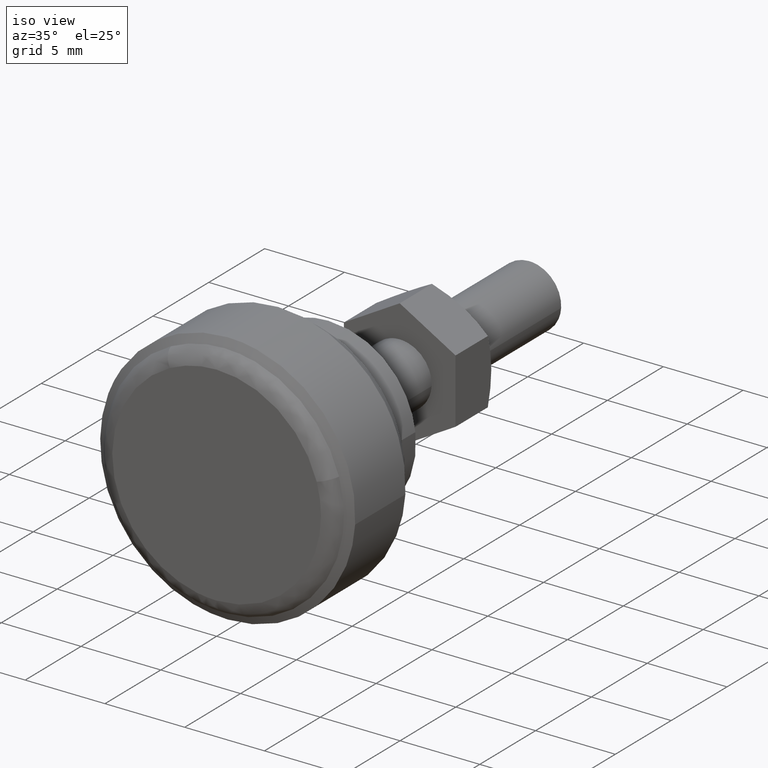
[diagram: clean part render]
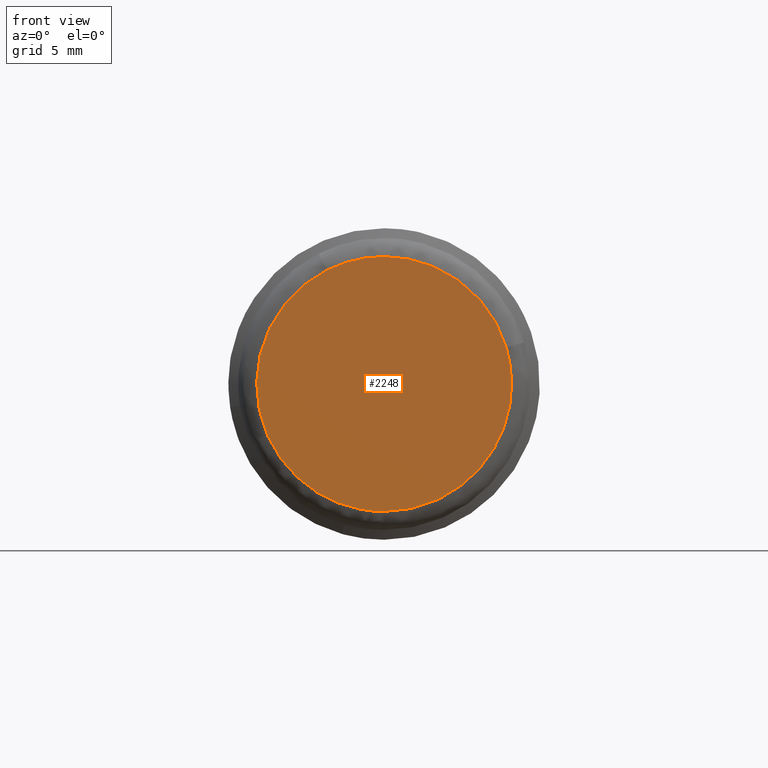
[diagram: tour spotlight — one face highlighted and labeled with its STEP entity id]
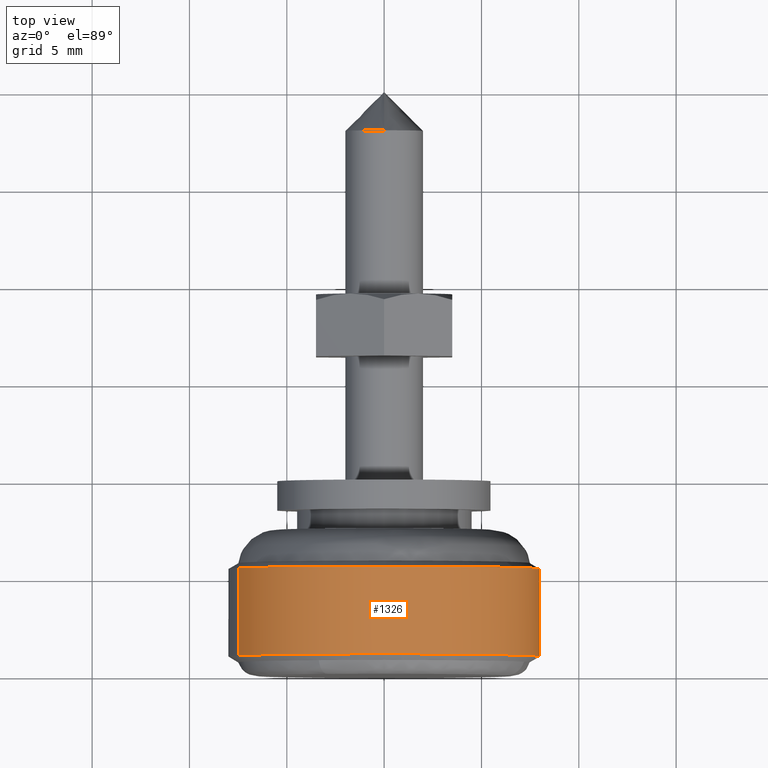
[diagram: tour spotlight — one face highlighted and labeled with its STEP entity id]
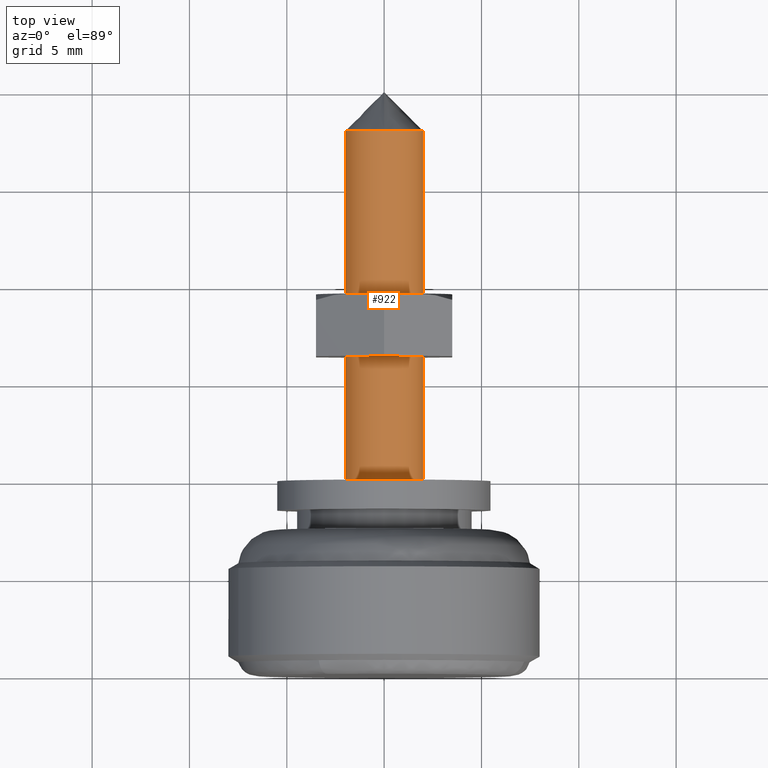
[diagram: tour spotlight — one face highlighted and labeled with its STEP entity id]
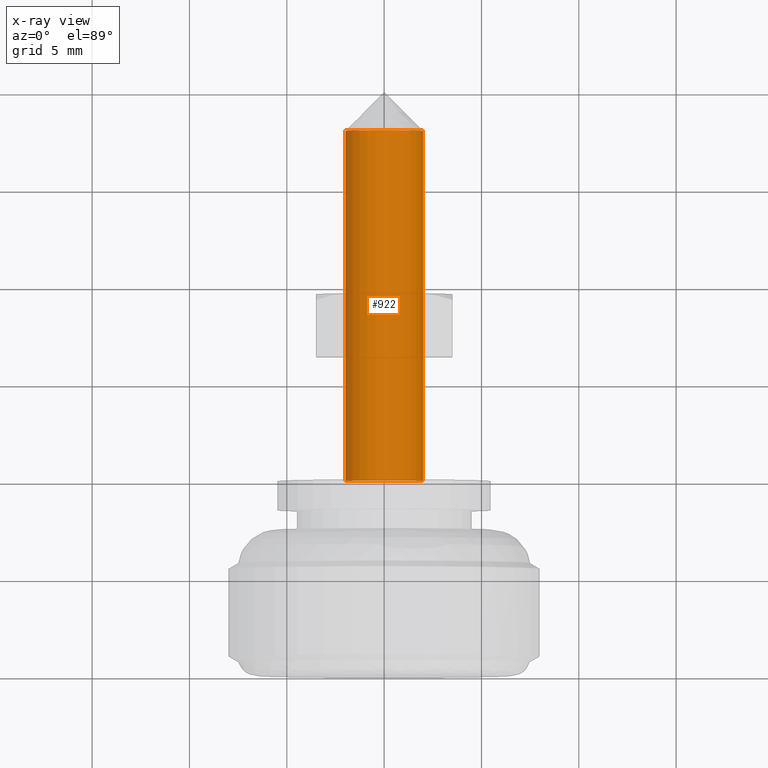
[diagram: x-ray of the same camera — body ghosted, this tour face saturated]
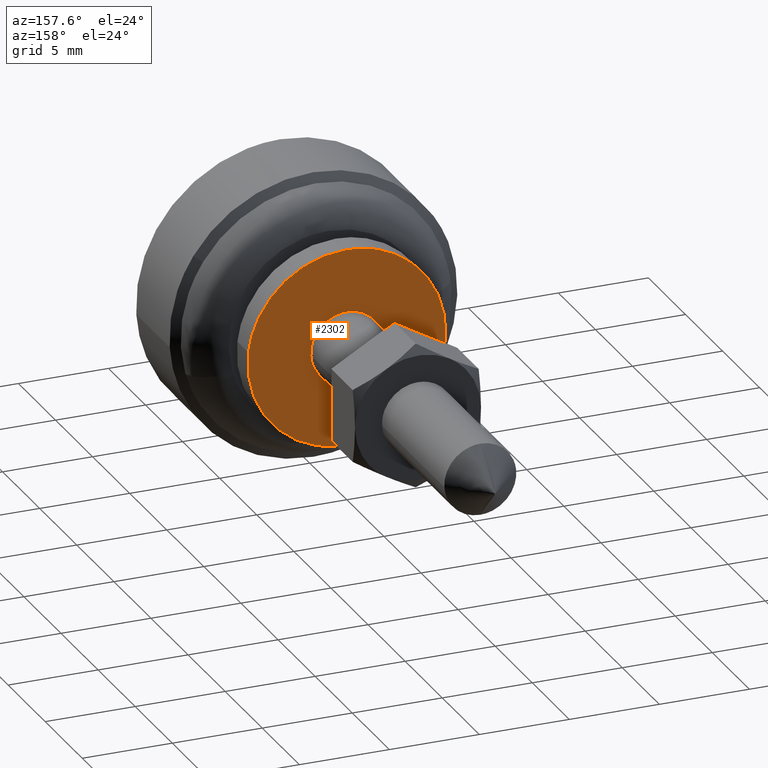
[diagram: tour spotlight — one face highlighted and labeled with its STEP entity id]
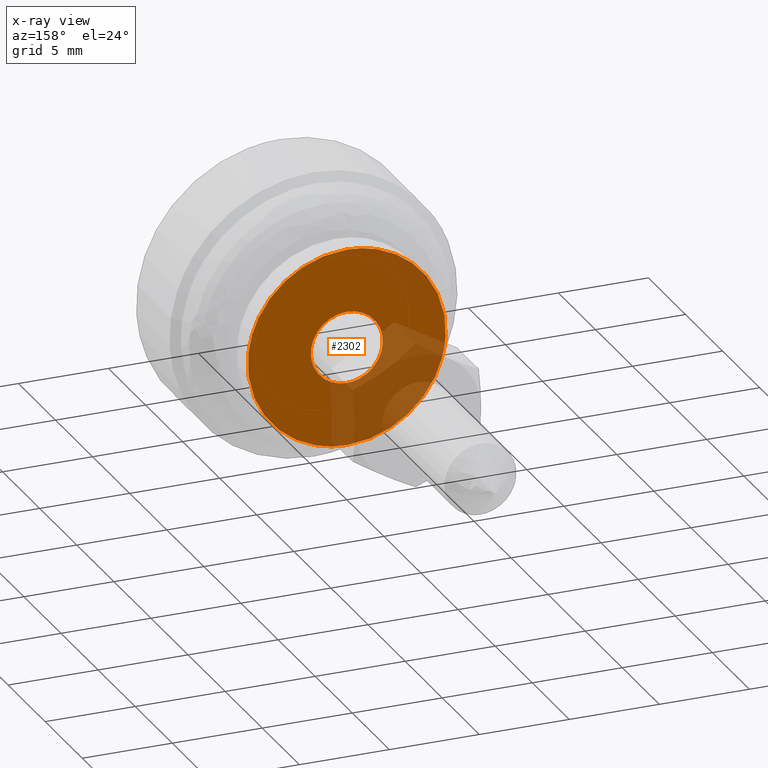
[diagram: x-ray of the same camera — body ghosted, this tour face saturated]
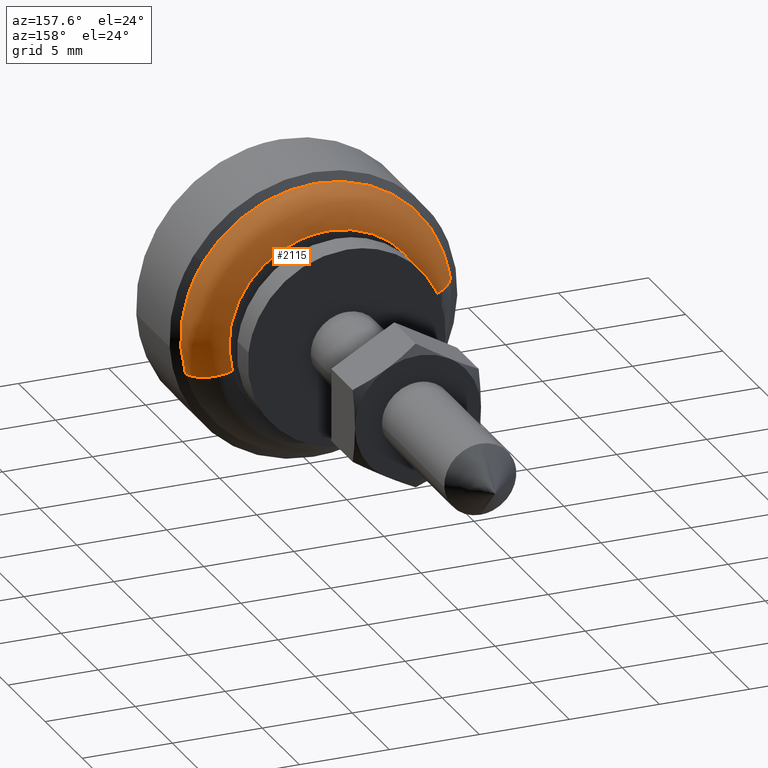
[diagram: tour spotlight — one face highlighted and labeled with its STEP entity id]
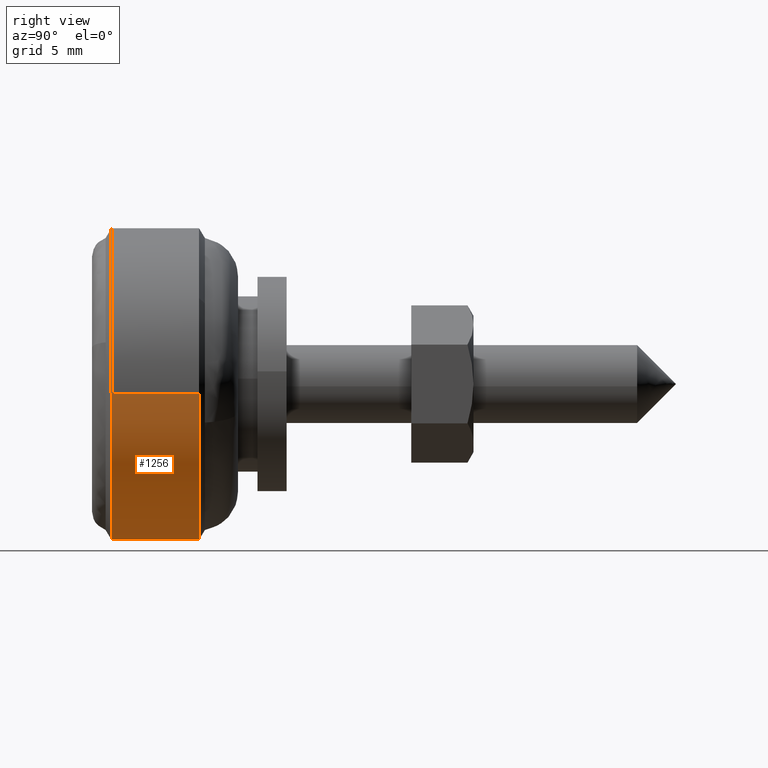
[diagram: tour spotlight — one face highlighted and labeled with its STEP entity id]
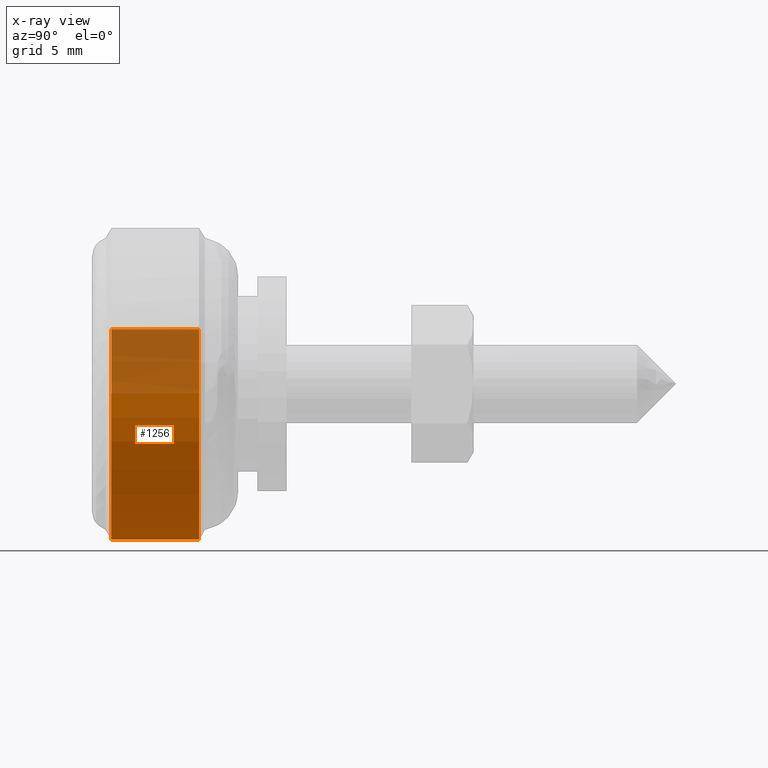
[diagram: x-ray of the same camera — body ghosted, this tour face saturated]
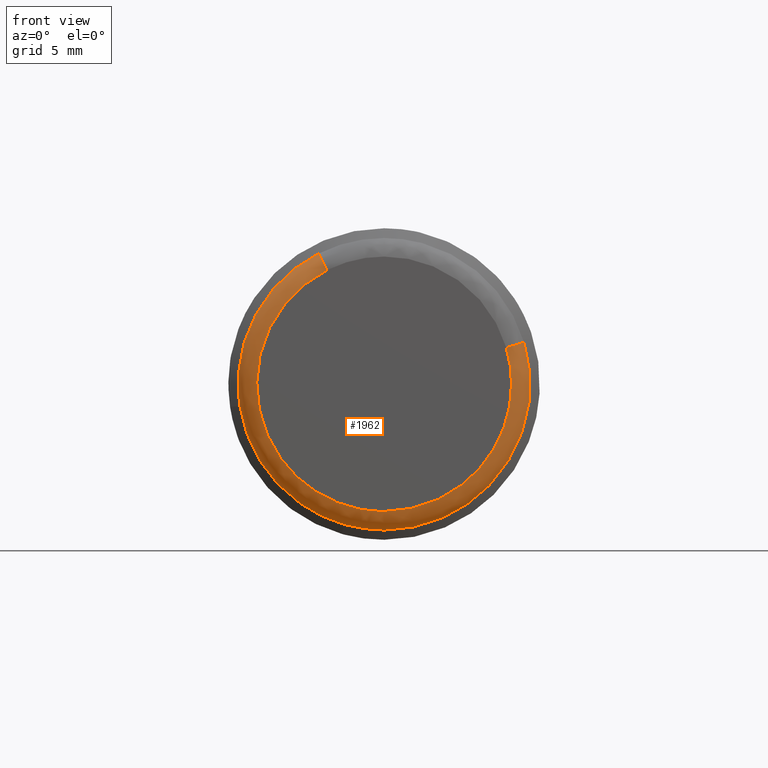
[diagram: tour spotlight — one face highlighted and labeled with its STEP entity id]
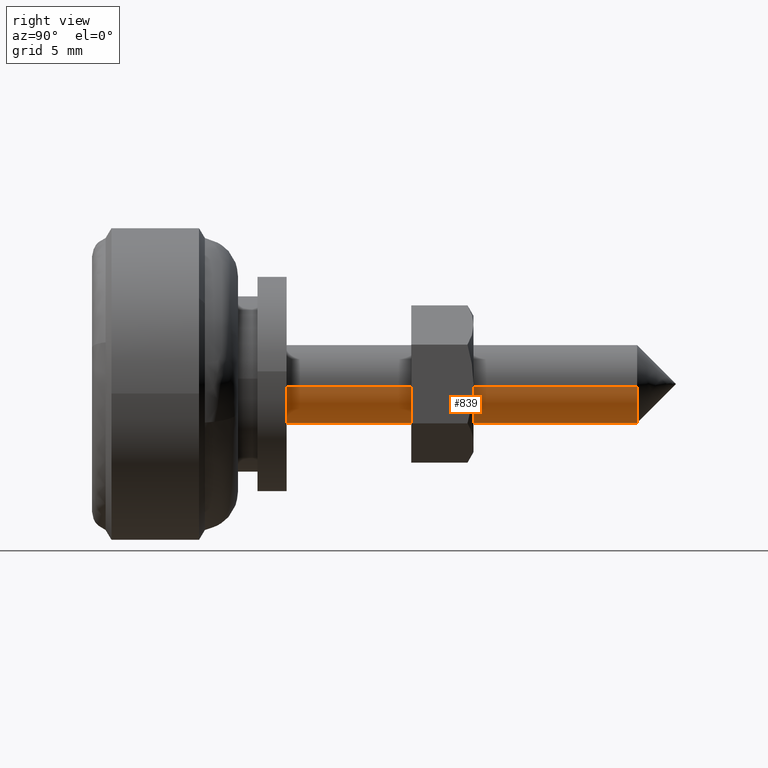
[diagram: tour spotlight — one face highlighted and labeled with its STEP entity id]
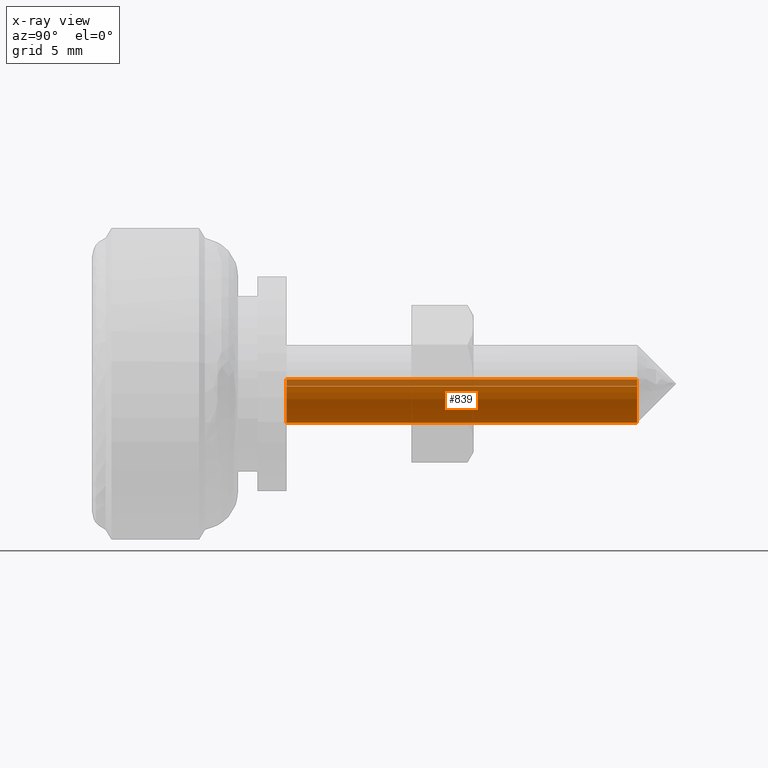
[diagram: x-ray of the same camera — body ghosted, this tour face saturated]
A machine part: a face-by-face anatomy tour. The part has 36 B-rep faces; the first image is the clean iso view, then the 8 largest visible faces are spotlighted one at a time (largest first), each with its STEP entity span.

Face 1 — front view, entity #2248. In plain terms, the highlighted face is a freeform B-spline surface patch.
Definition (entity closure, byte-faithful):
#1894=CARTESIAN_POINT('',(-10.0,2.932231827496556,5.852532145639485));
#1895=VERTEX_POINT('',#1894);
#1896=CARTESIAN_POINT('',(-10.0,0.0,-6.545999999999999));
#1897=VERTEX_POINT('',#1896);
#1898=CARTESIAN_POINT('',(-10.0,2.932231827496555,5.852532145639485));
#1899=CARTESIAN_POINT('',(-9.999999999999998,6.545999999999999,4.041964379081829));
#1900=CARTESIAN_POINT('',(-10.0,6.545999999999999,0.0));
#1901=CARTESIAN_POINT('',(-10.000000000000002,6.545999999999999,-6.545999999999999));
#1902=CARTESIAN_POINT('',(-10.0,0.0,-6.545999999999999));
#1910=(BOUNDED_CURVE()B_SPLINE_CURVE(2,(#1898,#1899,#1900,#1901,#1902),.UNSPECIFIED.,.F.,.U.)B_SPLINE_CURVE_WITH_KNOTS((3,2,3),(0.076154610385875,0.250000000000000,0.500000000000000),.UNSPECIFIED.)CURVE()GEOMETRIC_REPRESENTATION_ITEM()RATIONAL_B_SPLINE_CURVE((0.875915174756745,0.796327457040161,1.0,0.707106781186548,1.0))REPRESENTATION_ITEM(''));
#1911=EDGE_CURVE('',#1895,#1897,#1910,.T.);
#1930=CARTESIAN_POINT('',(-10.0,-6.274483631159997,1.865736092217007));
#1931=VERTEX_POINT('',#1930);
#1945=CARTESIAN_POINT('',(-10.0,0.0,-6.545999999999999));
#1946=CARTESIAN_POINT('',(-10.000000000000002,-6.545999999999999,-6.545999999999999));
#1947=CARTESIAN_POINT('',(-10.0,-6.545999999999999,0.0));
#1948=CARTESIAN_POINT('',(-10.0,-6.545999999999999,0.952624628746382));
#1949=CARTESIAN_POINT('',(-10.0,-6.274483631159997,1.865736092217007));
#1957=(BOUNDED_CURVE()B_SPLINE_CURVE(2,(#1945,#1946,#1947,#1948,#1949),.UNSPECIFIED.,.F.,.U.)B_SPLINE_CURVE_WITH_KNOTS((3,2,3),(0.500000000000000,0.750000000000000,0.798526662065126),.UNSPECIFIED.)CURVE()GEOMETRIC_REPRESENTATION_ITEM()RATIONAL_B_SPLINE_CURVE((1.0,0.707106781186548,1.0,0.943147478997890,0.908365862589539))REPRESENTATION_ITEM(''));
#1958=EDGE_CURVE('',#1897,#1931,#1957,.T.);
#1986=CARTESIAN_POINT('',(-10.0,0.0,6.545999999999999));
#1987=VERTEX_POINT('',#1986);
#1988=CARTESIAN_POINT('',(-10.0,0.0,6.545999999999999));
#1989=CARTESIAN_POINT('',(-10.0,1.548117899500506,6.545999999999999));
#1990=CARTESIAN_POINT('',(-10.000000000000002,2.932231827496556,5.852532145639485));
#1998=(BOUNDED_CURVE()B_SPLINE_CURVE(2,(#1988,#1989,#1990),.UNSPECIFIED.,.F.,.U.)B_SPLINE_CURVE_WITH_KNOTS((3,3),(0.0,0.076154610385875),.UNSPECIFIED.)CURVE()GEOMETRIC_REPRESENTATION_ITEM()RATIONAL_B_SPLINE_CURVE((1.0,0.910779324146387,0.875915174756745))REPRESENTATION_ITEM(''));
#1999=EDGE_CURVE('',#1987,#1895,#1998,.T.);
#2001=CARTESIAN_POINT('',(-10.0,-6.274483631159997,1.865736092217007));
#2002=CARTESIAN_POINT('',(-10.0,-4.882793444528926,6.545999999999999));
#2003=CARTESIAN_POINT('',(-10.0,0.0,6.545999999999999));
#2011=(BOUNDED_CURVE()B_SPLINE_CURVE(2,(#2001,#2002,#2003),.UNSPECIFIED.,.F.,.U.)B_SPLINE_CURVE_WITH_KNOTS((3,3),(0.798526662065127,1.0),.UNSPECIFIED.)CURVE()GEOMETRIC_REPRESENTATION_ITEM()RATIONAL_B_SPLINE_CURVE((0.908365862589538,0.763959302188658,1.0))REPRESENTATION_ITEM(''));
#2012=EDGE_CURVE('',#1931,#1987,#2011,.T.);
#2237=CARTESIAN_POINT('',(-10.0,-7.198232632917547,7.199945374625163));
#2238=CARTESIAN_POINT('',(-10.0,-7.198232632917547,-7.199945725779967));
#2239=CARTESIAN_POINT('',(-10.0,7.195548727455519,7.199945374625163));
#2240=CARTESIAN_POINT('',(-10.0,7.195548727455519,-7.199945725779967));
#2241=B_SPLINE_SURFACE_WITH_KNOTS('',1,1,((#2237,#2239),(#2238,#2240)),.UNSPECIFIED.,.F.,.F.,.U.,(2,2),(2,2),(0.0,14.399891100405130),(0.0,14.393781360373071),.UNSPECIFIED.);
#2242=ORIENTED_EDGE('',*,*,#1999,.T.);
#2243=ORIENTED_EDGE('',*,*,#1911,.T.);
#2244=ORIENTED_EDGE('',*,*,#1958,.T.);
#2245=ORIENTED_EDGE('',*,*,#2012,.T.);
#2246=EDGE_LOOP('',(#2242,#2243,#2244,#2245));
#2247=FACE_OUTER_BOUND('',#2246,.T.);
#2248=ADVANCED_FACE('',(#2247),#2241,.F.);

Face 2 — top view, entity #1326. In plain terms, the highlighted face is a freeform B-spline surface patch.
Definition (entity closure, byte-faithful):
#1025=CARTESIAN_POINT('',(-9.000000000000002,-7.985078533772769,-0.488385922683649));
#1026=VERTEX_POINT('',#1025);
#1040=CARTESIAN_POINT('',(-9.0,0.0,8.0));
#1041=VERTEX_POINT('',#1040);
#1042=CARTESIAN_POINT('',(-9.000000000000002,-7.985078533772769,-0.488385922683649));
#1043=CARTESIAN_POINT('',(-9.000000000000002,-8.000000000000002,-0.244420906235432));
#1044=CARTESIAN_POINT('',(-9.0,-8.0,0.0));
#1045=CARTESIAN_POINT('',(-9.000000000000002,-8.0,8.0));
#1046=CARTESIAN_POINT('',(-9.0,0.0,8.0));
#1054=(BOUNDED_CURVE()B_SPLINE_CURVE(2,(#1042,#1043,#1044,#1045,#1046),.UNSPECIFIED.,.F.,.U.)B_SPLINE_CURVE_WITH_KNOTS((3,2,3),(0.739333013964339,0.750000000000000,1.0),.UNSPECIFIED.)CURVE()GEOMETRIC_REPRESENTATION_ITEM()RATIONAL_B_SPLINE_CURVE((0.976072152524113,0.987502848499908,1.0,0.707106781186548,1.0))REPRESENTATION_ITEM(''));
#1055=EDGE_CURVE('',#1026,#1041,#1054,.T.);
#1057=CARTESIAN_POINT('',(-9.0,7.489148753605893,2.812943466613426));
#1058=VERTEX_POINT('',#1057);
#1059=CARTESIAN_POINT('',(-9.0,0.0,8.0));
#1060=CARTESIAN_POINT('',(-9.0,5.540877284826602,8.0));
#1061=CARTESIAN_POINT('',(-9.0,7.489148753605893,2.812943466613426));
#1069=(BOUNDED_CURVE()B_SPLINE_CURVE(2,(#1059,#1060,#1061),.UNSPECIFIED.,.F.,.U.)B_SPLINE_CURVE_WITH_KNOTS((3,3),(0.0,0.190284184756177),.UNSPECIFIED.)CURVE()GEOMETRIC_REPRESENTATION_ITEM()RATIONAL_B_SPLINE_CURVE((1.0,0.777068210549879,0.893499571593773))REPRESENTATION_ITEM(''));
#1070=EDGE_CURVE('',#1041,#1058,#1069,.T.);
#1191=CARTESIAN_POINT('',(-4.500000000000000,7.489148755111877,2.812943462603911));
#1192=VERTEX_POINT('',#1191);
#1225=CARTESIAN_POINT('',(-4.499999999999990,-7.985078535560109,-0.488385893460607));
#1226=VERTEX_POINT('',#1225);
#1240=CARTESIAN_POINT('',(-4.499999999999990,-7.985078535560109,-0.488385893460607));
#1241=CARTESIAN_POINT('',(-9.000000000000002,-7.985078533772769,-0.488385922683649));
#1242=QUASI_UNIFORM_CURVE('',1,(#1240,#1241),.UNSPECIFIED.,.F.,.U.);
#1243=EDGE_CURVE('',#1226,#1026,#1242,.T.);
#1249=CARTESIAN_POINT('',(-4.500000000000000,7.489148755111877,2.812943462603911));
#1250=CARTESIAN_POINT('',(-9.0,7.489148753605893,2.812943466613426));
#1251=QUASI_UNIFORM_CURVE('',1,(#1249,#1250),.UNSPECIFIED.,.F.,.U.);
#1252=EDGE_CURVE('',#1192,#1058,#1251,.T.);
#1257=CARTESIAN_POINT('',(-4.387499999999999,-7.985078387374934,-0.488388316278856));
#1258=CARTESIAN_POINT('',(-4.387499999999999,-8.473466703653790,7.496690071096078));
#1259=CARTESIAN_POINT('',(-4.387499999999999,-0.488388316278856,7.985078387374934));
#1260=CARTESIAN_POINT('',(-4.387499999999998,5.410956654424521,8.345897782954735));
#1261=CARTESIAN_POINT('',(-4.387499999999999,7.489148630213257,2.812943795132577));
#1262=CARTESIAN_POINT('',(-9.115312500000002,-7.985078387374934,-0.488388316278856));
#1263=CARTESIAN_POINT('',(-9.115312500000002,-8.473466703653790,7.496690071096078));
#1264=CARTESIAN_POINT('',(-9.115312500000002,-0.488388316278856,7.985078387374934));
#1265=CARTESIAN_POINT('',(-9.115312500000002,5.410956654424521,8.345897782954735));
#1266=CARTESIAN_POINT('',(-9.115312500000000,7.489148630213257,2.812943795132577));
#1274=(BOUNDED_SURFACE()B_SPLINE_SURFACE(2,1,((#1257,#1262),(#1258,#1263),(#1259,#1264),(#1260,#1265),(#1261,#1266)),.UNSPECIFIED.,.F.,.F.,.U.)B_SPLINE_SURFACE_WITH_KNOTS((3,2,3),(2,2),(0.0,13.254833995939039,23.858701192690269),(0.0,4.727812500000003),.UNSPECIFIED.)GEOMETRIC_REPRESENTATION_ITEM()RATIONAL_B_SPLINE_SURFACE(((1.0,1.0),(0.707106781186548,0.707106781186548),(1.0,1.0),(0.765685424949238,0.765685424949238),(0.906274169979695,0.906274169979695)))REPRESENTATION_ITEM('')SURFACE());
#1275=CARTESIAN_POINT('',(-4.500000000000000,0.0,8.0));
#1276=VERTEX_POINT('',#1275);
#1277=CARTESIAN_POINT('',(-4.500000000000000,0.0,8.0));
#1278=CARTESIAN_POINT('',(-4.500000000000001,5.540877291164208,8.000000000000002));
#1279=CARTESIAN_POINT('',(-4.500000000000000,7.489148755111877,2.812943462603912));
#1287=(BOUNDED_CURVE()B_SPLINE_CURVE(2,(#1277,#1278,#1279),.UNSPECIFIED.,.F.,.U.)B_SPLINE_CURVE_WITH_KNOTS((3,3),(0.0,0.190284184925302),.UNSPECIFIED.)CURVE()GEOMETRIC_REPRESENTATION_ITEM()RATIONAL_B_SPLINE_CURVE((1.0,0.777068210351737,0.893499571800742))REPRESENTATION_ITEM(''));
#1288=EDGE_CURVE('',#1276,#1192,#1287,.T.);
#1289=ORIENTED_EDGE('',*,*,#1288,.T.);
#1290=ORIENTED_EDGE('',*,*,#1252,.T.);
#1291=ORIENTED_EDGE('',*,*,#1070,.F.);
#1292=ORIENTED_EDGE('',*,*,#1055,.F.);
#1293=ORIENTED_EDGE('',*,*,#1243,.F.);
#1294=CARTESIAN_POINT('',(-4.500000000000428,-6.671086576530033,4.415495882508806));
#1295=VERTEX_POINT('',#1294);
#1296=CARTESIAN_POINT('',(-4.499999999999990,-7.985078535560109,-0.488385893460607));
#1297=CARTESIAN_POINT('',(-4.500000000000000,-8.000000000000002,-0.244420891582942));
#1298=CARTESIAN_POINT('',(-4.500000000000000,-8.0,0.0));
#1299=CARTESIAN_POINT('',(-4.500000000000000,-8.0,2.407726713077449));
#1300=CARTESIAN_POINT('',(-4.500000000000428,-6.671086576530033,4.415495882508806));
#1308=(BOUNDED_CURVE()B_SPLINE_CURVE(2,(#1296,#1297,#1298,#1299,#1300),.UNSPECIFIED.,.F.,.U.)B_SPLINE_CURVE_WITH_KNOTS((3,2,3),(0.739333014595810,0.750000000000000,0.844612684636419),.UNSPECIFIED.)CURVE()GEOMETRIC_REPRESENTATION_ITEM()RATIONAL_B_SPLINE_CURVE((0.976072153877475,0.987502849239722,1.0,0.889154345025028,0.862207930029771))REPRESENTATION_ITEM(''));
#1309=EDGE_CURVE('',#1226,#1295,#1308,.T.);
#1310=ORIENTED_EDGE('',*,*,#1309,.T.);
#1311=CARTESIAN_POINT('',(-4.500000000000428,-6.671086576530033,4.415495882508806));
#1312=CARTESIAN_POINT('',(-4.500000000000001,-4.298555057096790,8.0));
#1313=CARTESIAN_POINT('',(-4.500000000000000,0.0,8.0));
#1321=(BOUNDED_CURVE()B_SPLINE_CURVE(2,(#1311,#1312,#1313),.UNSPECIFIED.,.F.,.U.)B_SPLINE_CURVE_WITH_KNOTS((3,3),(0.844612684636419,1.0),.UNSPECIFIED.)CURVE()GEOMETRIC_REPRESENTATION_ITEM()RATIONAL_B_SPLINE_CURVE((0.862207930029771,0.817952436161519,1.0))REPRESENTATION_ITEM(''));
#1322=EDGE_CURVE('',#1295,#1276,#1321,.T.);
#1323=ORIENTED_EDGE('',*,*,#1322,.T.);
#1324=EDGE_LOOP('',(#1289,#1290,#1291,#1292,#1293,#1310,#1323));
#1325=FACE_OUTER_BOUND('',#1324,.T.);
#1326=ADVANCED_FACE('',(#1325),#1274,.T.);

Face 3 — top view, entity #922. An x-ray twin of the same camera follows (body ghosted, this face saturated) — the face is partly hidden behind the body. In plain terms, the highlighted face is a freeform B-spline surface patch.
Definition (entity closure, byte-faithful):
#759=CARTESIAN_POINT('',(18.0,1.986019052723226,0.236068469348070));
#760=VERTEX_POINT('',#759);
#778=CARTESIAN_POINT('',(18.0,-1.996269596840941,-0.122097079115369));
#779=VERTEX_POINT('',#778);
#793=CARTESIAN_POINT('',(-3.053113E-016,-1.996269596840941,-0.122097079115369));
#794=VERTEX_POINT('',#793);
#795=CARTESIAN_POINT('',(18.0,-1.996269596840941,-0.122097079115369));
#796=CARTESIAN_POINT('',(-3.053113E-016,-1.996269596840941,-0.122097079115369));
#797=QUASI_UNIFORM_CURVE('',1,(#795,#796),.UNSPECIFIED.,.F.,.U.);
#798=EDGE_CURVE('',#779,#794,#797,.T.);
#815=CARTESIAN_POINT('',(-3.123371E-016,1.986019052723226,0.236068469348070));
#816=VERTEX_POINT('',#815);
#832=CARTESIAN_POINT('',(18.0,1.986019052723226,0.236068469348070));
#833=CARTESIAN_POINT('',(-3.123371E-016,1.986019052723226,0.236068469348070));
#834=QUASI_UNIFORM_CURVE('',1,(#832,#833),.UNSPECIFIED.,.F.,.U.);
#835=EDGE_CURVE('',#760,#816,#834,.T.);
#840=CARTESIAN_POINT('',(18.449999999999999,-1.996269596843733,-0.122097079069714));
#841=CARTESIAN_POINT('',(18.450000000000010,-2.118366675913447,1.874172517774020));
#842=CARTESIAN_POINT('',(18.449999999999999,-0.122097079069714,1.996269596843733));
#843=CARTESIAN_POINT('',(18.449999999999999,1.763086981679002,2.111572393465055));
#844=CARTESIAN_POINT('',(18.450000000000003,1.986019052727332,0.236068469313517));
#845=CARTESIAN_POINT('',(-0.461250000000003,-1.996269596843733,-0.122097079069714));
#846=CARTESIAN_POINT('',(-0.461250000000003,-2.118366675913447,1.874172517774020));
#847=CARTESIAN_POINT('',(-0.461250000000003,-0.122097079069714,1.996269596843733));
#848=CARTESIAN_POINT('',(-0.461250000000003,1.763086981679002,2.111572393465055));
#849=CARTESIAN_POINT('',(-0.461250000000003,1.986019052727332,0.236068469313517));
#857=(BOUNDED_SURFACE()B_SPLINE_SURFACE(2,1,((#840,#845),(#841,#846),(#842,#847),(#843,#848),(#844,#849)),.UNSPECIFIED.,.F.,.F.,.U.)B_SPLINE_SURFACE_WITH_KNOTS((3,2,3),(2,2),(0.0,3.313708498984759,6.494868658010128),(0.0,18.911250000000010),.UNSPECIFIED.)GEOMETRIC_REPRESENTATION_ITEM()RATIONAL_B_SPLINE_SURFACE(((1.0,1.0),(0.707106781186548,0.707106781186548),(1.0,1.0),(0.718822509939086,0.718822509939086),(0.977505800795127,0.977505800795127)))REPRESENTATION_ITEM('')SURFACE());
#858=CARTESIAN_POINT('',(18.0,0.0,2.0));
#859=VERTEX_POINT('',#858);
#860=CARTESIAN_POINT('',(18.0,0.0,2.0));
#861=CARTESIAN_POINT('',(18.000000000000004,1.776349051840490,2.000000000000000));
#862=CARTESIAN_POINT('',(18.000000000000007,1.986019052723226,0.236068469348070));
#870=(BOUNDED_CURVE()B_SPLINE_CURVE(2,(#860,#861,#862),.UNSPECIFIED.,.F.,.U.)B_SPLINE_CURVE_WITH_KNOTS((3,3),(0.0,0.459124947019527),.UNSPECIFIED.)CURVE()GEOMETRIC_REPRESENTATION_ITEM()RATIONAL_B_SPLINE_CURVE((1.0,0.731050832859790,0.956026754176359))REPRESENTATION_ITEM(''));
#871=EDGE_CURVE('',#859,#760,#870,.T.);
#872=ORIENTED_EDGE('',*,*,#871,.T.);
#873=ORIENTED_EDGE('',*,*,#835,.T.);
#874=CARTESIAN_POINT('',(0.0,0.0,2.0));
#875=VERTEX_POINT('',#874);
#876=CARTESIAN_POINT('',(0.0,0.0,2.0));
#877=CARTESIAN_POINT('',(0.0,1.776349051840490,2.000000000000000));
#878=CARTESIAN_POINT('',(-3.123371E-016,1.986019052723226,0.236068469348070));
#886=(BOUNDED_CURVE()B_SPLINE_CURVE(2,(#876,#877,#878),.UNSPECIFIED.,.F.,.U.)B_SPLINE_CURVE_WITH_KNOTS((3,3),(0.0,0.229562473509764),.UNSPECIFIED.)CURVE()GEOMETRIC_REPRESENTATION_ITEM()RATIONAL_B_SPLINE_CURVE((1.0,0.731050832859790,0.956026754176359))REPRESENTATION_ITEM(''));
#887=EDGE_CURVE('',#875,#816,#886,.T.);
#888=ORIENTED_EDGE('',*,*,#887,.F.);
#889=CARTESIAN_POINT('',(-3.053113E-016,-1.996269596840941,-0.122097079115369));
#890=CARTESIAN_POINT('',(0.0,-2.000000000000000,-0.061105526642961));
#891=CARTESIAN_POINT('',(0.0,-2.0,0.0));
#892=CARTESIAN_POINT('',(0.0,-2.000000000000000,2.000000000000000));
#893=CARTESIAN_POINT('',(0.0,0.0,2.0));
#901=(BOUNDED_CURVE()B_SPLINE_CURVE(2,(#889,#890,#891,#892,#893),.UNSPECIFIED.,.F.,.U.)B_SPLINE_CURVE_WITH_KNOTS((3,2,3),(0.739332962234076,0.750000000000000,1.0),.UNSPECIFIED.)CURVE()GEOMETRIC_REPRESENTATION_ITEM()RATIONAL_B_SPLINE_CURVE((0.976072041656287,0.987502787894135,1.0,0.707106781186548,1.0))REPRESENTATION_ITEM(''));
#902=EDGE_CURVE('',#794,#875,#901,.T.);
#903=ORIENTED_EDGE('',*,*,#902,.F.);
#904=ORIENTED_EDGE('',*,*,#798,.F.);
#905=CARTESIAN_POINT('',(18.0,-1.996269596840942,-0.122097079115369));
#906=CARTESIAN_POINT('',(18.0,-2.0,-0.061105526642960));
#907=CARTESIAN_POINT('',(18.0,-2.0,0.0));
#908=CARTESIAN_POINT('',(18.000000000000007,-2.000000000000000,2.000000000000000));
#909=CARTESIAN_POINT('',(18.0,0.0,2.0));
#917=(BOUNDED_CURVE()B_SPLINE_CURVE(2,(#905,#906,#907,#908,#909),.UNSPECIFIED.,.F.,.U.)B_SPLINE_CURVE_WITH_KNOTS((3,2,3),(0.478665924468152,0.500000000000000,1.0),.UNSPECIFIED.)CURVE()GEOMETRIC_REPRESENTATION_ITEM()RATIONAL_B_SPLINE_CURVE((0.976072041656287,0.987502787894135,1.0,0.707106781186548,1.0))REPRESENTATION_ITEM(''));
#918=EDGE_CURVE('',#779,#859,#917,.T.);
#919=ORIENTED_EDGE('',*,*,#918,.T.);
#920=EDGE_LOOP('',(#872,#873,#888,#903,#904,#919));
#921=FACE_OUTER_BOUND('',#920,.T.);
#922=ADVANCED_FACE('',(#921),#857,.T.);

Face 4 — auxiliary view, entity #2302. An x-ray twin of the same camera follows (body ghosted, this face saturated) — the face is partly hidden behind the body. In plain terms, the highlighted face is a freeform B-spline surface patch.
Definition (entity closure, byte-faithful):
#793=CARTESIAN_POINT('',(-3.053113E-016,-1.996269596840941,-0.122097079115369));
#794=VERTEX_POINT('',#793);
#800=CARTESIAN_POINT('',(0.0,0.0,-2.0));
#801=VERTEX_POINT('',#800);
#802=CARTESIAN_POINT('',(0.0,0.0,-2.0));
#803=CARTESIAN_POINT('',(0.0,-1.881412133725169,-2.0));
#804=CARTESIAN_POINT('',(-3.053113E-016,-1.996269596840941,-0.122097079115369));
#812=(BOUNDED_CURVE()B_SPLINE_CURVE(2,(#802,#803,#804),.UNSPECIFIED.,.F.,.U.)B_SPLINE_CURVE_WITH_KNOTS((3,3),(0.500000000000000,0.739332962234076),.UNSPECIFIED.)CURVE()GEOMETRIC_REPRESENTATION_ITEM()RATIONAL_B_SPLINE_CURVE((1.0,0.719603993292413,0.976072041656286))REPRESENTATION_ITEM(''));
#813=EDGE_CURVE('',#801,#794,#812,.T.);
#815=CARTESIAN_POINT('',(-3.123371E-016,1.986019052723226,0.236068469348070));
#816=VERTEX_POINT('',#815);
#817=CARTESIAN_POINT('',(-3.123371E-016,1.986019052723225,0.236068469348070));
#818=CARTESIAN_POINT('',(0.0,2.000000000000000,0.118448239338738));
#819=CARTESIAN_POINT('',(0.0,2.0,0.0));
#820=CARTESIAN_POINT('',(0.0,2.000000000000000,-2.000000000000000));
#821=CARTESIAN_POINT('',(0.0,0.0,-2.0));
#829=(BOUNDED_CURVE()B_SPLINE_CURVE(2,(#817,#818,#819,#820,#821),.UNSPECIFIED.,.F.,.U.)B_SPLINE_CURVE_WITH_KNOTS((3,2,3),(0.229562473509764,0.250000000000000,0.500000000000000),.UNSPECIFIED.)CURVE()GEOMETRIC_REPRESENTATION_ITEM()RATIONAL_B_SPLINE_CURVE((0.956026754176359,0.976055948326758,1.0,0.707106781186548,1.0))REPRESENTATION_ITEM(''));
#830=EDGE_CURVE('',#816,#801,#829,.T.);
#874=CARTESIAN_POINT('',(0.0,0.0,2.0));
#875=VERTEX_POINT('',#874);
#876=CARTESIAN_POINT('',(0.0,0.0,2.0));
#877=CARTESIAN_POINT('',(0.0,1.776349051840490,2.000000000000000));
#878=CARTESIAN_POINT('',(-3.123371E-016,1.986019052723226,0.236068469348070));
#886=(BOUNDED_CURVE()B_SPLINE_CURVE(2,(#876,#877,#878),.UNSPECIFIED.,.F.,.U.)B_SPLINE_CURVE_WITH_KNOTS((3,3),(0.0,0.229562473509764),.UNSPECIFIED.)CURVE()GEOMETRIC_REPRESENTATION_ITEM()RATIONAL_B_SPLINE_CURVE((1.0,0.731050832859790,0.956026754176359))REPRESENTATION_ITEM(''));
#887=EDGE_CURVE('',#875,#816,#886,.T.);
#889=CARTESIAN_POINT('',(-3.053113E-016,-1.996269596840941,-0.122097079115369));
#890=CARTESIAN_POINT('',(0.0,-2.000000000000000,-0.061105526642961));
#891=CARTESIAN_POINT('',(0.0,-2.0,0.0));
#892=CARTESIAN_POINT('',(0.0,-2.000000000000000,2.000000000000000));
#893=CARTESIAN_POINT('',(0.0,0.0,2.0));
#901=(BOUNDED_CURVE()B_SPLINE_CURVE(2,(#889,#890,#891,#892,#893),.UNSPECIFIED.,.F.,.U.)B_SPLINE_CURVE_WITH_KNOTS((3,2,3),(0.739332962234076,0.750000000000000,1.0),.UNSPECIFIED.)CURVE()GEOMETRIC_REPRESENTATION_ITEM()RATIONAL_B_SPLINE_CURVE((0.976072041656287,0.987502787894135,1.0,0.707106781186548,1.0))REPRESENTATION_ITEM(''));
#902=EDGE_CURVE('',#794,#875,#901,.T.);
#1735=CARTESIAN_POINT('',(4.510281E-017,5.489741924442543,-0.335758250742432));
#1736=VERTEX_POINT('',#1735);
#1742=CARTESIAN_POINT('',(0.0,0.0,-5.500000000000000));
#1743=VERTEX_POINT('',#1742);
#1744=CARTESIAN_POINT('',(0.0,0.0,-5.500000000000000));
#1745=CARTESIAN_POINT('',(0.0,5.173891598513117,-5.500000000000001));
#1746=CARTESIAN_POINT('',(4.510281E-017,5.489741924442543,-0.335758250742432));
#1754=(BOUNDED_CURVE()B_SPLINE_CURVE(2,(#1744,#1745,#1746),.UNSPECIFIED.,.F.,.U.)B_SPLINE_CURVE_WITH_KNOTS((3,3),(0.500000000000000,0.739333236214580),.UNSPECIFIED.)CURVE()GEOMETRIC_REPRESENTATION_ITEM()RATIONAL_B_SPLINE_CURVE((1.0,0.719603672304285,0.976072628849365))REPRESENTATION_ITEM(''));
#1755=EDGE_CURVE('',#1743,#1736,#1754,.T.);
#1757=CARTESIAN_POINT('',(3.904214E-017,-5.461553000788037,0.649183194142338));
#1758=VERTEX_POINT('',#1757);
#1759=CARTESIAN_POINT('',(3.904214E-017,-5.461553000788037,0.649183194142338));
#1760=CARTESIAN_POINT('',(0.0,-5.499999999999999,0.325730082911331));
#1761=CARTESIAN_POINT('',(0.0,-5.500000000000000,0.0));
#1762=CARTESIAN_POINT('',(0.0,-5.500000000000001,-5.500000000000001));
#1763=CARTESIAN_POINT('',(0.0,0.0,-5.500000000000000));
#1771=(BOUNDED_CURVE()B_SPLINE_CURVE(2,(#1759,#1760,#1761,#1762,#1763),.UNSPECIFIED.,.F.,.U.)B_SPLINE_CURVE_WITH_KNOTS((3,2,3),(0.229562631221723,0.250000000000000,0.500000000000000),.UNSPECIFIED.)CURVE()GEOMETRIC_REPRESENTATION_ITEM()RATIONAL_B_SPLINE_CURVE((0.956027063298486,0.976056133097811,1.0,0.707106781186548,1.0))REPRESENTATION_ITEM(''));
#1772=EDGE_CURVE('',#1758,#1743,#1771,.T.);
#1816=CARTESIAN_POINT('',(0.0,0.0,5.500000000000000));
#1817=VERTEX_POINT('',#1816);
#1818=CARTESIAN_POINT('',(0.0,0.0,5.500000000000000));
#1819=CARTESIAN_POINT('',(0.0,-4.884964483243948,5.500000000000001));
#1820=CARTESIAN_POINT('',(3.904214E-017,-5.461553000788037,0.649183194142338));
#1828=(BOUNDED_CURVE()B_SPLINE_CURVE(2,(#1818,#1819,#1820),.UNSPECIFIED.,.F.,.U.)B_SPLINE_CURVE_WITH_KNOTS((3,3),(0.0,0.229562631221723),.UNSPECIFIED.)CURVE()GEOMETRIC_REPRESENTATION_ITEM()RATIONAL_B_SPLINE_CURVE((1.0,0.731050648088736,0.956027063298486))REPRESENTATION_ITEM(''));
#1829=EDGE_CURVE('',#1817,#1758,#1828,.T.);
#1831=CARTESIAN_POINT('',(4.510281E-017,5.489741924442543,-0.335758250742432));
#1832=CARTESIAN_POINT('',(0.0,5.500000000000001,-0.168035827572739));
#1833=CARTESIAN_POINT('',(0.0,5.500000000000000,0.0));
#1834=CARTESIAN_POINT('',(0.0,5.500000000000001,5.500000000000001));
#1835=CARTESIAN_POINT('',(0.0,0.0,5.500000000000000));
#1843=(BOUNDED_CURVE()B_SPLINE_CURVE(2,(#1831,#1832,#1833,#1834,#1835),.UNSPECIFIED.,.F.,.U.)B_SPLINE_CURVE_WITH_KNOTS((3,2,3),(0.739333236214580,0.750000000000000,1.0),.UNSPECIFIED.)CURVE()GEOMETRIC_REPRESENTATION_ITEM()RATIONAL_B_SPLINE_CURVE((0.976072628849365,0.987503108882262,1.0,0.707106781186548,1.0))REPRESENTATION_ITEM(''));
#1844=EDGE_CURVE('',#1736,#1817,#1843,.T.);
#2285=CARTESIAN_POINT('',(0.0,-6.049350254945297,6.049449978679866));
#2286=CARTESIAN_POINT('',(0.0,6.049316128305931,6.049449978679866));
#2287=CARTESIAN_POINT('',(0.0,-6.049350254945297,-6.049450273722857));
#2288=CARTESIAN_POINT('',(0.0,6.049316128305931,-6.049450273722857));
#2289=B_SPLINE_SURFACE_WITH_KNOTS('',1,1,((#2285,#2287),(#2286,#2288)),.UNSPECIFIED.,.F.,.F.,.U.,(2,2),(2,2),(0.0,12.098666383251230),(0.0,12.098900252402720),.UNSPECIFIED.);
#2290=ORIENTED_EDGE('',*,*,#1829,.T.);
#2291=ORIENTED_EDGE('',*,*,#1772,.T.);
#2292=ORIENTED_EDGE('',*,*,#1755,.T.);
#2293=ORIENTED_EDGE('',*,*,#1844,.T.);
#2294=EDGE_LOOP('',(#2290,#2291,#2292,#2293));
#2295=FACE_OUTER_BOUND('',#2294,.T.);
#2296=ORIENTED_EDGE('',*,*,#813,.T.);
#2297=ORIENTED_EDGE('',*,*,#902,.T.);
#2298=ORIENTED_EDGE('',*,*,#887,.T.);
#2299=ORIENTED_EDGE('',*,*,#830,.T.);
#2300=EDGE_LOOP('',(#2296,#2297,#2298,#2299));
#2301=FACE_BOUND('',#2300,.T.);
#2302=ADVANCED_FACE('',(#2295,#2301),#2289,.F.);

Face 5 — auxiliary view, entity #2115. In plain terms, the highlighted face is a freeform B-spline surface patch.
Definition (entity closure, byte-faithful):
#1366=CARTESIAN_POINT('',(-4.199983193682517,-7.235174283618619,-1.975296114114128));
#1367=VERTEX_POINT('',#1366);
#1381=CARTESIAN_POINT('',(-4.199982109619155,-6.254118205825438,4.139510538468565));
#1382=VERTEX_POINT('',#1381);
#1383=CARTESIAN_POINT('',(-4.199983193682517,-7.235174283618620,-1.975296114114129));
#1384=CARTESIAN_POINT('',(-4.199983107668333,-7.499969421863575,-1.005396432316922));
#1385=CARTESIAN_POINT('',(-4.199982995023192,-7.499969405376078,-0.000000059218398));
#1386=CARTESIAN_POINT('',(-4.199982742121437,-7.499969368359681,2.257234527903331));
#1387=CARTESIAN_POINT('',(-4.199982109619155,-6.254118205825438,4.139510538468565));
#1395=(BOUNDED_CURVE()B_SPLINE_CURVE(2,(#1383,#1384,#1385,#1386,#1387),.UNSPECIFIED.,.F.,.U.)B_SPLINE_CURVE_WITH_KNOTS((3,2,3),(0.705098215504528,0.750000000000000,0.844612686750473),.UNSPECIFIED.)CURVE()GEOMETRIC_REPRESENTATION_ITEM()RATIONAL_B_SPLINE_CURVE((0.913685297491802,0.947394287234612,1.0,0.889154342548261,0.862207928825574))REPRESENTATION_ITEM(''));
#1396=EDGE_CURVE('',#1367,#1382,#1395,.T.);
#1432=CARTESIAN_POINT('',(-4.199981513068753,7.414857623658715,1.126687289724964));
#1433=VERTEX_POINT('',#1432);
#1454=CARTESIAN_POINT('',(-4.199981513081490,0.0,7.499969188469150));
#1455=VERTEX_POINT('',#1454);
#1456=CARTESIAN_POINT('',(-4.199982109619155,-6.254118205825438,4.139510538468565));
#1457=CARTESIAN_POINT('',(-4.199981857847730,-4.029878793828583,7.499969174692290));
#1458=CARTESIAN_POINT('',(-4.199981513081490,0.0,7.499969188469150));
#1466=(BOUNDED_CURVE()B_SPLINE_CURVE(2,(#1456,#1457,#1458),.UNSPECIFIED.,.F.,.U.)B_SPLINE_CURVE_WITH_KNOTS((3,3),(0.844612686750472,1.0),.UNSPECIFIED.)CURVE()GEOMETRIC_REPRESENTATION_ITEM()RATIONAL_B_SPLINE_CURVE((0.862207928825574,0.817952438638286,1.0))REPRESENTATION_ITEM(''));
#1467=EDGE_CURVE('',#1382,#1455,#1466,.T.);
#1469=CARTESIAN_POINT('',(-4.199981513081490,0.0,7.499969188469150));
#1470=CARTESIAN_POINT('',(-4.199981513081490,6.446437719516140,7.499969188469150));
#1471=CARTESIAN_POINT('',(-4.199981513068753,7.414857623658715,1.126687289724965));
#1479=(BOUNDED_CURVE()B_SPLINE_CURVE(2,(#1469,#1470,#1471),.UNSPECIFIED.,.F.,.U.)B_SPLINE_CURVE_WITH_KNOTS((3,3),(0.0,0.224102415376537),.UNSPECIFIED.)CURVE()GEOMETRIC_REPRESENTATION_ITEM()RATIONAL_B_SPLINE_CURVE((1.0,0.737447688865987,0.945604234434569))REPRESENTATION_ITEM(''));
#1480=EDGE_CURVE('',#1455,#1433,#1479,.T.);
#2021=CARTESIAN_POINT('',(-2.504117025667767,-5.203883474967998,-1.420731757645962));
#2022=CARTESIAN_POINT('',(-2.504117025667766,-5.286180459587595,-1.119292787202153));
#2023=CARTESIAN_POINT('',(-2.504117025667766,-5.333121628669301,-0.810367596864841));
#2024=CARTESIAN_POINT('',(-2.504117025667766,-6.143489225534140,4.522754031804459));
#2025=CARTESIAN_POINT('',(-2.504117025667766,-0.810367596864841,5.333121628669301));
#2026=CARTESIAN_POINT('',(-2.504117025667766,4.522754031804459,6.143489225534141));
#2027=CARTESIAN_POINT('',(-2.504117025667766,5.333121628669301,0.810367596864841));
#2028=CARTESIAN_POINT('',(-2.378636302502568,-7.087547010713232,-1.934997808918255));
#2029=CARTESIAN_POINT('',(-2.378636302502569,-7.199633253638750,-1.524446172979745));
#2030=CARTESIAN_POINT('',(-2.378636302502569,-7.263565842484135,-1.103698510231071));
#2031=CARTESIAN_POINT('',(-2.378636302502567,-8.367264352715203,6.159867332253062));
#2032=CARTESIAN_POINT('',(-2.378636302502569,-1.103698510231072,7.263565842484135));
#2033=CARTESIAN_POINT('',(-2.378636302502567,6.159867332253062,8.367264352715203));
#2034=CARTESIAN_POINT('',(-2.378636302502569,7.263565842484135,1.103698510231072));
#2035=CARTESIAN_POINT('',(-4.328019499343101,-7.249857828588214,-1.979310894457875));
#2036=CARTESIAN_POINT('',(-4.328019499343100,-7.364510941226800,-1.559357279003975));
#2037=CARTESIAN_POINT('',(-4.328019499343101,-7.429907640401002,-1.128974139106931));
#2038=CARTESIAN_POINT('',(-4.328019499343101,-8.558881779507935,6.300933501294072));
#2039=CARTESIAN_POINT('',(-4.328019499343101,-1.128974139106932,7.429907640401002));
#2040=CARTESIAN_POINT('',(-4.328019499343101,6.300933501294070,8.558881779507935));
#2041=CARTESIAN_POINT('',(-4.328019499343101,7.429907640401002,1.128974139106932));
#2049=(BOUNDED_SURFACE()B_SPLINE_SURFACE(2,2,((#2021,#2028,#2035),(#2022,#2029,#2036),(#2023,#2030,#2037),(#2024,#2031,#2038),(#2025,#2032,#2039),(#2026,#2033,#2040),(#2027,#2034,#2041)),.UNSPECIFIED.,.F.,.F.,.U.)B_SPLINE_SURFACE_WITH_KNOTS((3,2,2,3),(3,3),(0.0,0.996125268406257,13.447702998234361,25.899280728062450),(0.0,3.262453289703720),.UNSPECIFIED.)GEOMETRIC_REPRESENTATION_ITEM()RATIONAL_B_SPLINE_SURFACE(((0.878158914929160,0.626181422764639,0.873857148888657),(0.896221965505042,0.639061490958205,0.891831715459840),(0.917725593236814,0.654394902689006,0.913230005109914),(0.648929990246198,0.462727073265307,0.645751129396246),(0.917725593236814,0.654394902689006,0.913230005109914),(0.648929990246198,0.462727073265307,0.645751129396246),(0.917725593236814,0.654394902689006,0.913230005109914)))REPRESENTATION_ITEM('')SURFACE());
#2050=ORIENTED_EDGE('',*,*,#1467,.F.);
#2051=ORIENTED_EDGE('',*,*,#1396,.F.);
#2052=CARTESIAN_POINT('',(-2.500000000000000,-5.327616891671075,-1.454513327666891));
#2053=VERTEX_POINT('',#2052);
#2054=CARTESIAN_POINT('',(-2.500000000000000,-5.327616891671076,-1.454513327666891));
#2055=CARTESIAN_POINT('',(-2.500000000744539,-6.986349686277076,-1.907366970460363));
#2056=CARTESIAN_POINT('',(-4.199983193682517,-7.235174283618619,-1.975296114114128));
#2064=(BOUNDED_CURVE()B_SPLINE_CURVE(2,(#2054,#2055,#2056),.UNSPECIFIED.,.F.,.U.)B_SPLINE_CURVE_WITH_KNOTS((3,3),(-1.715024459965948,-0.298390313716962),.UNSPECIFIED.)CURVE()GEOMETRIC_REPRESENTATION_ITEM()RATIONAL_B_SPLINE_CURVE((0.856303089715209,0.647841805736949,0.852392089319013))REPRESENTATION_ITEM(''));
#2065=EDGE_CURVE('',#2053,#1367,#2064,.T.);
#2066=ORIENTED_EDGE('',*,*,#2065,.F.);
#2067=CARTESIAN_POINT('',(-2.500000000000000,0.0,5.522600000000000));
#2068=VERTEX_POINT('',#2067);
#2069=CARTESIAN_POINT('',(-2.500000000000000,-5.327616891671075,-1.454513327666891));
#2070=CARTESIAN_POINT('',(-2.500000000000000,-5.522600000000001,-0.740325781827981));
#2071=CARTESIAN_POINT('',(-2.500000000000000,-5.522600000000000,0.0));
#2072=CARTESIAN_POINT('',(-2.500000000000000,-5.522600000000000,5.522600000000000));
#2073=CARTESIAN_POINT('',(-2.500000000000000,0.0,5.522600000000000));
#2081=(BOUNDED_CURVE()B_SPLINE_CURVE(2,(#2069,#2070,#2071,#2072,#2073),.UNSPECIFIED.,.F.,.U.)B_SPLINE_CURVE_WITH_KNOTS((3,2,3),(0.705098073246514,0.750000000000000,1.0),.UNSPECIFIED.)CURVE()GEOMETRIC_REPRESENTATION_ITEM()RATIONAL_B_SPLINE_CURVE((0.913685083898079,0.947394120568983,1.0,0.707106781186547,1.0))REPRESENTATION_ITEM(''));
#2082=EDGE_CURVE('',#2053,#2068,#2081,.T.);
#2083=ORIENTED_EDGE('',*,*,#2082,.T.);
#2084=CARTESIAN_POINT('',(-2.500000000000000,5.459928126038445,0.829635838915772));
#2085=VERTEX_POINT('',#2084);
#2086=CARTESIAN_POINT('',(-2.500000000000000,0.0,5.522600000000000));
#2087=CARTESIAN_POINT('',(-2.500000000000000,4.746832426987731,5.522600000000000));
#2088=CARTESIAN_POINT('',(-2.500000000000000,5.459928126038445,0.829635838915772));
#2096=(BOUNDED_CURVE()B_SPLINE_CURVE(2,(#2086,#2087,#2088),.UNSPECIFIED.,.F.,.U.)B_SPLINE_CURVE_WITH_KNOTS((3,3),(0.0,0.224102415355343),.UNSPECIFIED.)CURVE()GEOMETRIC_REPRESENTATION_ITEM()RATIONAL_B_SPLINE_CURVE((1.0,0.737447688890817,0.945604234395196))REPRESENTATION_ITEM(''));
#2097=EDGE_CURVE('',#2068,#2085,#2096,.T.);
#2098=ORIENTED_EDGE('',*,*,#2097,.T.);
#2099=CARTESIAN_POINT('',(-2.500000000000001,5.459928126038445,0.829635838915772));
#2100=CARTESIAN_POINT('',(-2.500000001045994,7.159853156044580,1.087939372089046));
#2101=CARTESIAN_POINT('',(-4.199981513068754,7.414857623658715,1.126687289724965));
#2109=(BOUNDED_CURVE()B_SPLINE_CURVE(2,(#2099,#2100,#2101),.UNSPECIFIED.,.F.,.U.)B_SPLINE_CURVE_WITH_KNOTS((3,3),(-1.715024459774714,-0.298391235066536),.UNSPECIFIED.)CURVE()GEOMETRIC_REPRESENTATION_ITEM()RATIONAL_B_SPLINE_CURVE((0.894885058295212,0.677031392793588,0.890797564145239))REPRESENTATION_ITEM(''));
#2110=EDGE_CURVE('',#2085,#1433,#2109,.T.);
#2111=ORIENTED_EDGE('',*,*,#2110,.T.);
#2112=ORIENTED_EDGE('',*,*,#1480,.F.);
#2113=EDGE_LOOP('',(#2050,#2051,#2066,#2083,#2098,#2111,#2112));
#2114=FACE_OUTER_BOUND('',#2113,.T.);
#2115=ADVANCED_FACE('',(#2114),#2049,.T.);

Face 6 — right view, entity #1256. An x-ray twin of the same camera follows (body ghosted, this face saturated) — the face is partly hidden behind the body. In plain terms, the highlighted face is a freeform B-spline surface patch.
Definition (entity closure, byte-faithful):
#937=CARTESIAN_POINT('',(-8.999999999996062,7.912126906894615,-1.182475289086098));
#938=VERTEX_POINT('',#937);
#939=CARTESIAN_POINT('',(-8.999999999999893,2.183880291809003,-7.696146235035498));
#940=VERTEX_POINT('',#939);
#941=CARTESIAN_POINT('',(-8.999999999996062,7.912126906894615,-1.182475289086098));
#942=CARTESIAN_POINT('',(-9.0,7.149225813063063,-6.287165701826031));
#943=CARTESIAN_POINT('',(-8.999999999999893,2.183880291809003,-7.696146235035498));
#951=(BOUNDED_CURVE()B_SPLINE_CURVE(2,(#941,#942,#943),.UNSPECIFIED.,.F.,.U.)B_SPLINE_CURVE_WITH_KNOTS((3,3),(0.275488969613778,0.453488921273909),.UNSPECIFIED.)CURVE()GEOMETRIC_REPRESENTATION_ITEM()RATIONAL_B_SPLINE_CURVE((0.946364879858355,0.780348705183345,0.911293289051974))REPRESENTATION_ITEM(''));
#952=EDGE_CURVE('',#938,#940,#951,.T.);
#1010=CARTESIAN_POINT('',(-9.0,0.0,-8.0));
#1011=VERTEX_POINT('',#1010);
#1012=CARTESIAN_POINT('',(-8.999999999999893,2.183880291809003,-7.696146235035498));
#1013=CARTESIAN_POINT('',(-9.0,1.113078463520376,-8.0));
#1014=CARTESIAN_POINT('',(-9.0,0.0,-8.0));
#1022=(BOUNDED_CURVE()B_SPLINE_CURVE(2,(#1012,#1013,#1014),.UNSPECIFIED.,.F.,.U.)B_SPLINE_CURVE_WITH_KNOTS((3,3),(0.453488921273909,0.500000000000000),.UNSPECIFIED.)CURVE()GEOMETRIC_REPRESENTATION_ITEM()RATIONAL_B_SPLINE_CURVE((0.911293289051974,0.945508881765717,1.0))REPRESENTATION_ITEM(''));
#1023=EDGE_CURVE('',#940,#1011,#1022,.T.);
#1025=CARTESIAN_POINT('',(-9.000000000000002,-7.985078533772769,-0.488385922683649));
#1026=VERTEX_POINT('',#1025);
#1027=CARTESIAN_POINT('',(-9.0,0.0,-8.0));
#1028=CARTESIAN_POINT('',(-9.0,-7.525650795338561,-8.0));
#1029=CARTESIAN_POINT('',(-9.000000000000002,-7.985078533772769,-0.488385922683649));
#1037=(BOUNDED_CURVE()B_SPLINE_CURVE(2,(#1027,#1028,#1029),.UNSPECIFIED.,.F.,.U.)B_SPLINE_CURVE_WITH_KNOTS((3,3),(0.500000000000000,0.739333013964339),.UNSPECIFIED.)CURVE()GEOMETRIC_REPRESENTATION_ITEM()RATIONAL_B_SPLINE_CURVE((1.0,0.719603932686639,0.976072152524113))REPRESENTATION_ITEM(''));
#1038=EDGE_CURVE('',#1011,#1026,#1037,.T.);
#1057=CARTESIAN_POINT('',(-9.0,7.489148753605893,2.812943466613426));
#1058=VERTEX_POINT('',#1057);
#1072=CARTESIAN_POINT('',(-9.0,7.489148753605893,2.812943466613426));
#1073=CARTESIAN_POINT('',(-9.0,8.0,1.452858726031879));
#1074=CARTESIAN_POINT('',(-9.0,8.0,0.0));
#1075=CARTESIAN_POINT('',(-9.000000000000002,8.0,-0.594502693978404));
#1076=CARTESIAN_POINT('',(-8.999999999996062,7.912126906894615,-1.182475289086099));
#1084=(BOUNDED_CURVE()B_SPLINE_CURVE(2,(#1072,#1073,#1074,#1075,#1076),.UNSPECIFIED.,.F.,.U.)B_SPLINE_CURVE_WITH_KNOTS((3,2,3),(0.190284184756177,0.250000000000000,0.275488969613778),.UNSPECIFIED.)CURVE()GEOMETRIC_REPRESENTATION_ITEM()RATIONAL_B_SPLINE_CURVE((0.893499571593773,0.930038570636668,1.0,0.970137814582330,0.946364879858355))REPRESENTATION_ITEM(''));
#1085=EDGE_CURVE('',#1058,#938,#1084,.T.);
#1169=CARTESIAN_POINT('',(-4.387499999999999,7.489148630213257,2.812943795132577));
#1170=CARTESIAN_POINT('',(-4.387499999999999,7.911712154921204,1.687915613723266));
#1171=CARTESIAN_POINT('',(-4.387499999999999,7.985078387374934,0.488388316278856));
#1172=CARTESIAN_POINT('',(-4.387499999999999,8.473466703653790,-7.496690071096078));
#1173=CARTESIAN_POINT('',(-4.387499999999999,0.488388316278856,-7.985078387374934));
#1174=CARTESIAN_POINT('',(-4.387499999999999,-7.496690071096078,-8.473466703653790));
#1175=CARTESIAN_POINT('',(-4.387499999999999,-7.985078387374934,-0.488388316278856));
#1176=CARTESIAN_POINT('',(-9.115312500000000,7.489148630213257,2.812943795132577));
#1177=CARTESIAN_POINT('',(-9.115312500000002,7.911712154921204,1.687915613723266));
#1178=CARTESIAN_POINT('',(-9.115312500000002,7.985078387374934,0.488388316278856));
#1179=CARTESIAN_POINT('',(-9.115312500000002,8.473466703653790,-7.496690071096078));
#1180=CARTESIAN_POINT('',(-9.115312500000002,0.488388316278856,-7.985078387374934));
#1181=CARTESIAN_POINT('',(-9.115312500000002,-7.496690071096078,-8.473466703653790));
#1182=CARTESIAN_POINT('',(-9.115312500000002,-7.985078387374934,-0.488388316278856));
#1190=(BOUNDED_SURFACE()B_SPLINE_SURFACE(2,1,((#1169,#1176),(#1170,#1177),(#1171,#1178),(#1172,#1179),(#1173,#1180),(#1174,#1181),(#1175,#1182)),.UNSPECIFIED.,.F.,.F.,.U.)B_SPLINE_SURFACE_WITH_KNOTS((3,2,2,3),(2,2),(0.0,2.650966799187807,15.905800795126840,29.160634791065881),(0.0,4.727812500000003),.UNSPECIFIED.)GEOMETRIC_REPRESENTATION_ITEM()RATIONAL_B_SPLINE_SURFACE(((0.906274169979695,0.906274169979695),(0.941421356237309,0.941421356237309),(1.0,1.0),(0.707106781186548,0.707106781186548),(1.0,1.0),(0.707106781186548,0.707106781186548),(1.0,1.0)))REPRESENTATION_ITEM('')SURFACE());
#1191=CARTESIAN_POINT('',(-4.500000000000000,7.489148755111877,2.812943462603911));
#1192=VERTEX_POINT('',#1191);
#1193=CARTESIAN_POINT('',(-4.500000000000862,6.912699561845349,-4.026733759225474));
#1194=VERTEX_POINT('',#1193);
#1195=CARTESIAN_POINT('',(-4.500000000000001,7.489148755111877,2.812943462603911));
#1196=CARTESIAN_POINT('',(-4.499999999999999,8.0,1.452858721607607));
#1197=CARTESIAN_POINT('',(-4.500000000000000,8.0,0.0));
#1198=CARTESIAN_POINT('',(-4.499999999999999,8.0,-2.160163553244566));
#1199=CARTESIAN_POINT('',(-4.500000000000862,6.912699561845349,-4.026733759225475));
#1207=(BOUNDED_CURVE()B_SPLINE_CURVE(2,(#1195,#1196,#1197,#1198,#1199),.UNSPECIFIED.,.F.,.U.)B_SPLINE_CURVE_WITH_KNOTS((3,2,3),(0.190284184925302,0.250000000000000,0.335863179245147),.UNSPECIFIED.)CURVE()GEOMETRIC_REPRESENTATION_ITEM()RATIONAL_B_SPLINE_CURVE((0.893499571800742,0.930038570834811,1.0,0.899405028213330,0.867909289176095))REPRESENTATION_ITEM(''));
#1208=EDGE_CURVE('',#1192,#1194,#1207,.T.);
#1209=ORIENTED_EDGE('',*,*,#1208,.T.);
#1210=CARTESIAN_POINT('',(-4.500000000000000,0.0,-8.0));
#1211=VERTEX_POINT('',#1210);
#1212=CARTESIAN_POINT('',(-4.500000000000862,6.912699561845349,-4.026733759225474));
#1213=CARTESIAN_POINT('',(-4.500000000000000,4.598222393686203,-8.0));
#1214=CARTESIAN_POINT('',(-4.500000000000000,0.0,-8.0));
#1222=(BOUNDED_CURVE()B_SPLINE_CURVE(2,(#1212,#1213,#1214),.UNSPECIFIED.,.F.,.U.)B_SPLINE_CURVE_WITH_KNOTS((3,3),(0.335863179245147,0.500000000000000),.UNSPECIFIED.)CURVE()GEOMETRIC_REPRESENTATION_ITEM()RATIONAL_B_SPLINE_CURVE((0.867909289176095,0.807701752973217,1.0))REPRESENTATION_ITEM(''));
#1223=EDGE_CURVE('',#1194,#1211,#1222,.T.);
#1224=ORIENTED_EDGE('',*,*,#1223,.T.);
#1225=CARTESIAN_POINT('',(-4.499999999999990,-7.985078535560109,-0.488385893460607));
#1226=VERTEX_POINT('',#1225);
#1227=CARTESIAN_POINT('',(-4.500000000000000,0.0,-8.0));
#1228=CARTESIAN_POINT('',(-4.499999999999999,-7.525650822931699,-8.0));
#1229=CARTESIAN_POINT('',(-4.499999999999990,-7.985078535560109,-0.488385893460607));
#1237=(BOUNDED_CURVE()B_SPLINE_CURVE(2,(#1227,#1228,#1229),.UNSPECIFIED.,.F.,.U.)B_SPLINE_CURVE_WITH_KNOTS((3,3),(0.500000000000000,0.739333014595810),.UNSPECIFIED.)CURVE()GEOMETRIC_REPRESENTATION_ITEM()RATIONAL_B_SPLINE_CURVE((1.0,0.719603931946825,0.976072153877475))REPRESENTATION_ITEM(''));
#1238=EDGE_CURVE('',#1211,#1226,#1237,.T.);
#1239=ORIENTED_EDGE('',*,*,#1238,.T.);
#1240=CARTESIAN_POINT('',(-4.499999999999990,-7.985078535560109,-0.488385893460607));
#1241=CARTESIAN_POINT('',(-9.000000000000002,-7.985078533772769,-0.488385922683649));
#1242=QUASI_UNIFORM_CURVE('',1,(#1240,#1241),.UNSPECIFIED.,.F.,.U.);
#1243=EDGE_CURVE('',#1226,#1026,#1242,.T.);
#1244=ORIENTED_EDGE('',*,*,#1243,.T.);
#1245=ORIENTED_EDGE('',*,*,#1038,.F.);
#1246=ORIENTED_EDGE('',*,*,#1023,.F.);
#1247=ORIENTED_EDGE('',*,*,#952,.F.);
#1248=ORIENTED_EDGE('',*,*,#1085,.F.);
#1249=CARTESIAN_POINT('',(-4.500000000000000,7.489148755111877,2.812943462603911));
#1250=CARTESIAN_POINT('',(-9.0,7.489148753605893,2.812943466613426));
#1251=QUASI_UNIFORM_CURVE('',1,(#1249,#1250),.UNSPECIFIED.,.F.,.U.);
#1252=EDGE_CURVE('',#1192,#1058,#1251,.T.);
#1253=ORIENTED_EDGE('',*,*,#1252,.F.);
#1254=EDGE_LOOP('',(#1209,#1224,#1239,#1244,#1245,#1246,#1247,#1248,#1253));
#1255=FACE_OUTER_BOUND('',#1254,.T.);
#1256=ADVANCED_FACE('',(#1255),#1190,.T.);

Face 7 — front view, entity #1962. In plain terms, the highlighted face is a freeform B-spline surface patch.
Definition (entity closure, byte-faithful):
#954=CARTESIAN_POINT('',(-9.300044964199213,2.047367316001331,-7.215065001370784));
#955=VERTEX_POINT('',#954);
#961=CARTESIAN_POINT('',(-9.300044964196690,7.417544858034038,-1.108559506635495));
#962=VERTEX_POINT('',#961);
#963=CARTESIAN_POINT('',(-9.300044964196690,7.417544858034038,-1.108559506635495));
#964=CARTESIAN_POINT('',(-9.300044964200730,6.702332229073774,-5.894158950147145));
#965=CARTESIAN_POINT('',(-9.300044964199213,2.047367316001331,-7.215065001370784));
#973=(BOUNDED_CURVE()B_SPLINE_CURVE(2,(#963,#964,#965),.UNSPECIFIED.,.F.,.U.)B_SPLINE_CURVE_WITH_KNOTS((3,3),(0.275488969613954,0.453488921273030),.UNSPECIFIED.)CURVE()GEOMETRIC_REPRESENTATION_ITEM()RATIONAL_B_SPLINE_CURVE((0.946364879858026,0.780348705184295,0.911293289050680))REPRESENTATION_ITEM(''));
#974=EDGE_CURVE('',#962,#955,#973,.T.);
#1088=CARTESIAN_POINT('',(-9.300044976080413,3.359535434001402,6.705400622799411));
#1089=VERTEX_POINT('',#1088);
#1090=CARTESIAN_POINT('',(-9.300044976080413,3.359535434001403,6.705400622799410));
#1091=CARTESIAN_POINT('',(-9.300044964200732,7.499925059665480,4.630985325003866));
#1092=CARTESIAN_POINT('',(-9.300044964200730,7.499925059665480,0.0));
#1093=CARTESIAN_POINT('',(-9.300044964200730,7.499925059665480,-0.557340706579882));
#1094=CARTESIAN_POINT('',(-9.300044964196690,7.417544858034039,-1.108559506635494));
#1102=(BOUNDED_CURVE()B_SPLINE_CURVE(2,(#1090,#1091,#1092,#1093,#1094),.UNSPECIFIED.,.F.,.U.)B_SPLINE_CURVE_WITH_KNOTS((3,2,3),(0.076154610383481,0.250000000000000,0.275488969613954),.UNSPECIFIED.)CURVE()GEOMETRIC_REPRESENTATION_ITEM()RATIONAL_B_SPLINE_CURVE((0.875915174758937,0.796327457037356,1.0,0.970137814582123,0.946364879858027))REPRESENTATION_ITEM(''));
#1103=EDGE_CURVE('',#1089,#962,#1102,.T.);
#1120=CARTESIAN_POINT('',(-9.300044976079205,-7.188841582122613,2.137623107963673));
#1121=VERTEX_POINT('',#1120);
#1135=CARTESIAN_POINT('',(-9.300044964200730,0.0,-7.499925059665480));
#1136=VERTEX_POINT('',#1135);
#1137=CARTESIAN_POINT('',(-9.300044964200730,0.0,-7.499925059665480));
#1138=CARTESIAN_POINT('',(-9.300044964200730,-7.499925059665482,-7.499925059665482));
#1139=CARTESIAN_POINT('',(-9.300044964200730,-7.499925059665480,0.0));
#1140=CARTESIAN_POINT('',(-9.300044964200730,-7.499925059665480,1.091447192956009));
#1141=CARTESIAN_POINT('',(-9.300044976079205,-7.188841582122614,2.137623107963674));
#1149=(BOUNDED_CURVE()B_SPLINE_CURVE(2,(#1137,#1138,#1139,#1140,#1141),.UNSPECIFIED.,.F.,.U.)B_SPLINE_CURVE_WITH_KNOTS((3,2,3),(0.500000000000000,0.750000000000000,0.798526662061926),.UNSPECIFIED.)CURVE()GEOMETRIC_REPRESENTATION_ITEM()RATIONAL_B_SPLINE_CURVE((1.0,0.707106781186547,1.0,0.943147479001639,0.908365862594126))REPRESENTATION_ITEM(''));
#1150=EDGE_CURVE('',#1136,#1121,#1149,.T.);
#1152=CARTESIAN_POINT('',(-9.300044964199213,2.047367316001331,-7.215065001370784));
#1153=CARTESIAN_POINT('',(-9.300044964200732,1.043500632762176,-7.499925059665481));
#1154=CARTESIAN_POINT('',(-9.300044964200730,0.0,-7.499925059665480));
#1162=(BOUNDED_CURVE()B_SPLINE_CURVE(2,(#1152,#1153,#1154),.UNSPECIFIED.,.F.,.U.)B_SPLINE_CURVE_WITH_KNOTS((3,3),(0.453488921273029,0.500000000000000),.UNSPECIFIED.)CURVE()GEOMETRIC_REPRESENTATION_ITEM()RATIONAL_B_SPLINE_CURVE((0.911293289050680,0.945508881764686,1.0))REPRESENTATION_ITEM(''));
#1163=EDGE_CURVE('',#955,#1136,#1162,.T.);
#1865=CARTESIAN_POINT('',(-9.243712479855802,3.366667786429578,6.719636305397867));
#1866=CARTESIAN_POINT('',(-9.243712479855804,8.999942291129623,3.897256797766802));
#1867=CARTESIAN_POINT('',(-9.243712479855804,7.204103618320157,-2.142161319207816));
#1868=CARTESIAN_POINT('',(-9.243712479855802,5.061942299112344,-9.346264937527971));
#1869=CARTESIAN_POINT('',(-9.243712479855804,-2.142161319207814,-7.204103618320159));
#1870=CARTESIAN_POINT('',(-9.243712479855802,-9.346264937527970,-5.061942299112344));
#1871=CARTESIAN_POINT('',(-9.243712479855804,-7.204103618320159,2.142161319207813));
#1872=CARTESIAN_POINT('',(-10.046684826581624,3.276282612691680,6.539233743147141));
#1873=CARTESIAN_POINT('',(-10.046684826581624,8.758320189033972,3.792626862438098));
#1874=CARTESIAN_POINT('',(-10.046684826581622,7.010694527054206,-2.084650559223819));
#1875=CARTESIAN_POINT('',(-10.046684826581624,4.926043967830389,-9.095345086278023));
#1876=CARTESIAN_POINT('',(-10.046684826581622,-2.084650559223817,-7.010694527054207));
#1877=CARTESIAN_POINT('',(-10.046684826581624,-9.095345086278023,-4.926043967830389));
#1878=CARTESIAN_POINT('',(-10.046684826581622,-7.010694527054207,2.084650559223817));
#1879=CARTESIAN_POINT('',(-9.998290216268966,2.906048660406174,5.800272353105434));
#1880=CARTESIAN_POINT('',(-9.998290216268970,7.768592536600488,3.364043800834926));
#1881=CARTESIAN_POINT('',(-9.998290216268966,6.218456051361416,-1.849076127187403));
#1882=CARTESIAN_POINT('',(-9.998290216268968,4.369379924174013,-8.067532178548818));
#1883=CARTESIAN_POINT('',(-9.998290216268966,-1.849076127187401,-6.218456051361416));
#1884=CARTESIAN_POINT('',(-9.998290216268968,-8.067532178548818,-4.369379924174015));
#1885=CARTESIAN_POINT('',(-9.998290216268966,-6.218456051361416,1.849076127187401));
#1893=(BOUNDED_SURFACE()B_SPLINE_SURFACE(2,2,((#1865,#1872,#1879),(#1866,#1873,#1880),(#1867,#1874,#1881),(#1868,#1875,#1882),(#1869,#1876,#1883),(#1870,#1877,#1884),(#1871,#1878,#1885)),.UNSPECIFIED.,.F.,.F.,.U.)B_SPLINE_SURFACE_WITH_KNOTS((3,2,2,3),(3,3),(0.0,10.958344245162600,23.411008160120112,35.863672075077609),(0.0,1.440979862893128),.UNSPECIFIED.)GEOMETRIC_REPRESENTATION_ITEM()RATIONAL_B_SPLINE_SURFACE(((0.862625887836531,0.664816941419664,0.863584927883986),(0.682506702403663,0.526000929010386,0.683265491665023),(0.919505630604805,0.708653576917331,0.920527907742606),(0.650188666739870,0.501093749750347,0.650911525836262),(0.919505630604805,0.708653576917331,0.920527907742606),(0.650188666739870,0.501093749750347,0.650911525836262),(0.919505630604805,0.708653576917331,0.920527907742606)))REPRESENTATION_ITEM('')SURFACE());
#1894=CARTESIAN_POINT('',(-10.0,2.932231827496556,5.852532145639485));
#1895=VERTEX_POINT('',#1894);
#1896=CARTESIAN_POINT('',(-10.0,0.0,-6.545999999999999));
#1897=VERTEX_POINT('',#1896);
#1898=CARTESIAN_POINT('',(-10.0,2.932231827496555,5.852532145639485));
#1899=CARTESIAN_POINT('',(-9.999999999999998,6.545999999999999,4.041964379081829));
#1900=CARTESIAN_POINT('',(-10.0,6.545999999999999,0.0));
#1901=CARTESIAN_POINT('',(-10.000000000000002,6.545999999999999,-6.545999999999999));
#1902=CARTESIAN_POINT('',(-10.0,0.0,-6.545999999999999));
#1910=(BOUNDED_CURVE()B_SPLINE_CURVE(2,(#1898,#1899,#1900,#1901,#1902),.UNSPECIFIED.,.F.,.U.)B_SPLINE_CURVE_WITH_KNOTS((3,2,3),(0.076154610385875,0.250000000000000,0.500000000000000),.UNSPECIFIED.)CURVE()GEOMETRIC_REPRESENTATION_ITEM()RATIONAL_B_SPLINE_CURVE((0.875915174756745,0.796327457040161,1.0,0.707106781186548,1.0))REPRESENTATION_ITEM(''));
#1911=EDGE_CURVE('',#1895,#1897,#1910,.T.);
#1912=ORIENTED_EDGE('',*,*,#1911,.F.);
#1913=CARTESIAN_POINT('',(-9.300044976080413,3.359535434001402,6.705400622799411));
#1914=CARTESIAN_POINT('',(-9.999999999335586,3.260915533737701,6.508562115235619));
#1915=CARTESIAN_POINT('',(-10.0,2.932231827496556,5.852532145639485));
#1923=(BOUNDED_CURVE()B_SPLINE_CURVE(2,(#1913,#1914,#1915),.UNSPECIFIED.,.F.,.U.)B_SPLINE_CURVE_WITH_KNOTS((3,3),(-1.684107300862932,-0.312243931799244),.UNSPECIFIED.)CURVE()GEOMETRIC_REPRESENTATION_ITEM()RATIONAL_B_SPLINE_CURVE((0.845477489619811,0.682008920023229,0.846349368602468))REPRESENTATION_ITEM(''));
#1924=EDGE_CURVE('',#1089,#1895,#1923,.T.);
#1925=ORIENTED_EDGE('',*,*,#1924,.F.);
#1926=ORIENTED_EDGE('',*,*,#1103,.T.);
#1927=ORIENTED_EDGE('',*,*,#974,.T.);
#1928=ORIENTED_EDGE('',*,*,#1163,.T.);
#1929=ORIENTED_EDGE('',*,*,#1150,.T.);
#1930=CARTESIAN_POINT('',(-10.0,-6.274483631159997,1.865736092217007));
#1931=VERTEX_POINT('',#1930);
#1932=CARTESIAN_POINT('',(-9.300044976079205,-7.188841582122613,2.137623107963673));
#1933=CARTESIAN_POINT('',(-9.999999999608125,-6.977811558971655,2.074872712316114));
#1934=CARTESIAN_POINT('',(-10.0,-6.274483631159996,1.865736092217008));
#1942=(BOUNDED_CURVE()B_SPLINE_CURVE(2,(#1932,#1933,#1934),.UNSPECIFIED.,.F.,.U.)B_SPLINE_CURVE_WITH_KNOTS((3,3),(-1.684107300865868,-0.312243931368362),.UNSPECIFIED.)CURVE()GEOMETRIC_REPRESENTATION_ITEM()RATIONAL_B_SPLINE_CURVE((0.901226502957674,0.726979158496303,0.902155871922070))REPRESENTATION_ITEM(''));
#1943=EDGE_CURVE('',#1121,#1931,#1942,.T.);
#1944=ORIENTED_EDGE('',*,*,#1943,.T.);
#1945=CARTESIAN_POINT('',(-10.0,0.0,-6.545999999999999));
#1946=CARTESIAN_POINT('',(-10.000000000000002,-6.545999999999999,-6.545999999999999));
#1947=CARTESIAN_POINT('',(-10.0,-6.545999999999999,0.0));
#1948=CARTESIAN_POINT('',(-10.0,-6.545999999999999,0.952624628746382));
#1949=CARTESIAN_POINT('',(-10.0,-6.274483631159997,1.865736092217007));
#1957=(BOUNDED_CURVE()B_SPLINE_CURVE(2,(#1945,#1946,#1947,#1948,#1949),.UNSPECIFIED.,.F.,.U.)B_SPLINE_CURVE_WITH_KNOTS((3,2,3),(0.500000000000000,0.750000000000000,0.798526662065126),.UNSPECIFIED.)CURVE()GEOMETRIC_REPRESENTATION_ITEM()RATIONAL_B_SPLINE_CURVE((1.0,0.707106781186548,1.0,0.943147478997890,0.908365862589539))REPRESENTATION_ITEM(''));
#1958=EDGE_CURVE('',#1897,#1931,#1957,.T.);
#1959=ORIENTED_EDGE('',*,*,#1958,.F.);
#1960=EDGE_LOOP('',(#1912,#1925,#1926,#1927,#1928,#1929,#1944,#1959));
#1961=FACE_OUTER_BOUND('',#1960,.T.);
#1962=ADVANCED_FACE('',(#1961),#1893,.T.);

Face 8 — right view, entity #839. An x-ray twin of the same camera follows (body ghosted, this face saturated) — the face is partly hidden behind the body. In plain terms, the highlighted face is a freeform B-spline surface patch.
Definition (entity closure, byte-faithful):
#737=CARTESIAN_POINT('',(18.450000000000003,1.986019052727332,0.236068469313517));
#738=CARTESIAN_POINT('',(18.450000000000010,1.992775230897211,0.179229457275955));
#739=CARTESIAN_POINT('',(18.449999999999999,1.996269596843733,0.122097079069714));
#740=CARTESIAN_POINT('',(18.450000000000010,2.118366675913447,-1.874172517774020));
#741=CARTESIAN_POINT('',(18.449999999999999,0.122097079069714,-1.996269596843733));
#742=CARTESIAN_POINT('',(18.450000000000010,-1.874172517774020,-2.118366675913447));
#743=CARTESIAN_POINT('',(18.449999999999999,-1.996269596843733,-0.122097079069714));
#744=CARTESIAN_POINT('',(-0.461250000000003,1.986019052727332,0.236068469313517));
#745=CARTESIAN_POINT('',(-0.461250000000003,1.992775230897211,0.179229457275955));
#746=CARTESIAN_POINT('',(-0.461250000000003,1.996269596843733,0.122097079069714));
#747=CARTESIAN_POINT('',(-0.461250000000003,2.118366675913447,-1.874172517774020));
#748=CARTESIAN_POINT('',(-0.461250000000003,0.122097079069714,-1.996269596843733));
#749=CARTESIAN_POINT('',(-0.461250000000003,-1.874172517774020,-2.118366675913447));
#750=CARTESIAN_POINT('',(-0.461250000000003,-1.996269596843733,-0.122097079069714));
#758=(BOUNDED_SURFACE()B_SPLINE_SURFACE(2,1,((#737,#744),(#738,#745),(#739,#746),(#740,#747),(#741,#748),(#742,#749),(#743,#750)),.UNSPECIFIED.,.F.,.F.,.U.)B_SPLINE_SURFACE_WITH_KNOTS((3,2,2,3),(2,2),(0.0,0.132548339959391,3.446256838944149,6.759965337928908),(0.0,18.911250000000010),.UNSPECIFIED.)GEOMETRIC_REPRESENTATION_ITEM()RATIONAL_B_SPLINE_SURFACE(((0.977505800795127,0.977505800795127),(0.988284271247462,0.988284271247462),(1.0,1.0),(0.707106781186548,0.707106781186548),(1.0,1.0),(0.707106781186548,0.707106781186548),(1.0,1.0)))REPRESENTATION_ITEM('')SURFACE());
#759=CARTESIAN_POINT('',(18.0,1.986019052723226,0.236068469348070));
#760=VERTEX_POINT('',#759);
#761=CARTESIAN_POINT('',(18.0,0.0,-2.0));
#762=VERTEX_POINT('',#761);
#763=CARTESIAN_POINT('',(18.0,1.986019052723225,0.236068469348070));
#764=CARTESIAN_POINT('',(18.0,2.000000000000000,0.118448239338738));
#765=CARTESIAN_POINT('',(18.0,2.0,0.0));
#766=CARTESIAN_POINT('',(18.000000000000007,2.000000000000000,-2.000000000000000));
#767=CARTESIAN_POINT('',(18.0,0.0,-2.0));
#775=(BOUNDED_CURVE()B_SPLINE_CURVE(2,(#763,#764,#765,#766,#767),.UNSPECIFIED.,.F.,.U.)B_SPLINE_CURVE_WITH_KNOTS((3,2,3),(0.459124947019527,0.500000000000000,1.0),.UNSPECIFIED.)CURVE()GEOMETRIC_REPRESENTATION_ITEM()RATIONAL_B_SPLINE_CURVE((0.956026754176359,0.976055948326758,1.0,0.707106781186548,1.0))REPRESENTATION_ITEM(''));
#776=EDGE_CURVE('',#760,#762,#775,.T.);
#777=ORIENTED_EDGE('',*,*,#776,.T.);
#778=CARTESIAN_POINT('',(18.0,-1.996269596840941,-0.122097079115369));
#779=VERTEX_POINT('',#778);
#780=CARTESIAN_POINT('',(18.0,0.0,-2.0));
#781=CARTESIAN_POINT('',(18.000000000000004,-1.881412133725174,-2.000000000000000));
#782=CARTESIAN_POINT('',(18.0,-1.996269596840942,-0.122097079115369));
#790=(BOUNDED_CURVE()B_SPLINE_CURVE(2,(#780,#781,#782),.UNSPECIFIED.,.F.,.U.)B_SPLINE_CURVE_WITH_KNOTS((3,3),(0.0,0.478665924468152),.UNSPECIFIED.)CURVE()GEOMETRIC_REPRESENTATION_ITEM()RATIONAL_B_SPLINE_CURVE((1.0,0.719603993292412,0.976072041656287))REPRESENTATION_ITEM(''));
#791=EDGE_CURVE('',#762,#779,#790,.T.);
#792=ORIENTED_EDGE('',*,*,#791,.T.);
#793=CARTESIAN_POINT('',(-3.053113E-016,-1.996269596840941,-0.122097079115369));
#794=VERTEX_POINT('',#793);
#795=CARTESIAN_POINT('',(18.0,-1.996269596840941,-0.122097079115369));
#796=CARTESIAN_POINT('',(-3.053113E-016,-1.996269596840941,-0.122097079115369));
#797=QUASI_UNIFORM_CURVE('',1,(#795,#796),.UNSPECIFIED.,.F.,.U.);
#798=EDGE_CURVE('',#779,#794,#797,.T.);
#799=ORIENTED_EDGE('',*,*,#798,.T.);
#800=CARTESIAN_POINT('',(0.0,0.0,-2.0));
#801=VERTEX_POINT('',#800);
#802=CARTESIAN_POINT('',(0.0,0.0,-2.0));
#803=CARTESIAN_POINT('',(0.0,-1.881412133725169,-2.0));
#804=CARTESIAN_POINT('',(-3.053113E-016,-1.996269596840941,-0.122097079115369));
#812=(BOUNDED_CURVE()B_SPLINE_CURVE(2,(#802,#803,#804),.UNSPECIFIED.,.F.,.U.)B_SPLINE_CURVE_WITH_KNOTS((3,3),(0.500000000000000,0.739332962234076),.UNSPECIFIED.)CURVE()GEOMETRIC_REPRESENTATION_ITEM()RATIONAL_B_SPLINE_CURVE((1.0,0.719603993292413,0.976072041656286))REPRESENTATION_ITEM(''));
#813=EDGE_CURVE('',#801,#794,#812,.T.);
#814=ORIENTED_EDGE('',*,*,#813,.F.);
#815=CARTESIAN_POINT('',(-3.123371E-016,1.986019052723226,0.236068469348070));
#816=VERTEX_POINT('',#815);
#817=CARTESIAN_POINT('',(-3.123371E-016,1.986019052723225,0.236068469348070));
#818=CARTESIAN_POINT('',(0.0,2.000000000000000,0.118448239338738));
#819=CARTESIAN_POINT('',(0.0,2.0,0.0));
#820=CARTESIAN_POINT('',(0.0,2.000000000000000,-2.000000000000000));
#821=CARTESIAN_POINT('',(0.0,0.0,-2.0));
#829=(BOUNDED_CURVE()B_SPLINE_CURVE(2,(#817,#818,#819,#820,#821),.UNSPECIFIED.,.F.,.U.)B_SPLINE_CURVE_WITH_KNOTS((3,2,3),(0.229562473509764,0.250000000000000,0.500000000000000),.UNSPECIFIED.)CURVE()GEOMETRIC_REPRESENTATION_ITEM()RATIONAL_B_SPLINE_CURVE((0.956026754176359,0.976055948326758,1.0,0.707106781186548,1.0))REPRESENTATION_ITEM(''));
#830=EDGE_CURVE('',#816,#801,#829,.T.);
#831=ORIENTED_EDGE('',*,*,#830,.F.);
#832=CARTESIAN_POINT('',(18.0,1.986019052723226,0.236068469348070));
#833=CARTESIAN_POINT('',(-3.123371E-016,1.986019052723226,0.236068469348070));
#834=QUASI_UNIFORM_CURVE('',1,(#832,#833),.UNSPECIFIED.,.F.,.U.);
#835=EDGE_CURVE('',#760,#816,#834,.T.);
#836=ORIENTED_EDGE('',*,*,#835,.F.);
#837=EDGE_LOOP('',(#777,#792,#799,#814,#831,#836));
#838=FACE_OUTER_BOUND('',#837,.T.);
#839=ADVANCED_FACE('',(#838),#758,.T.);